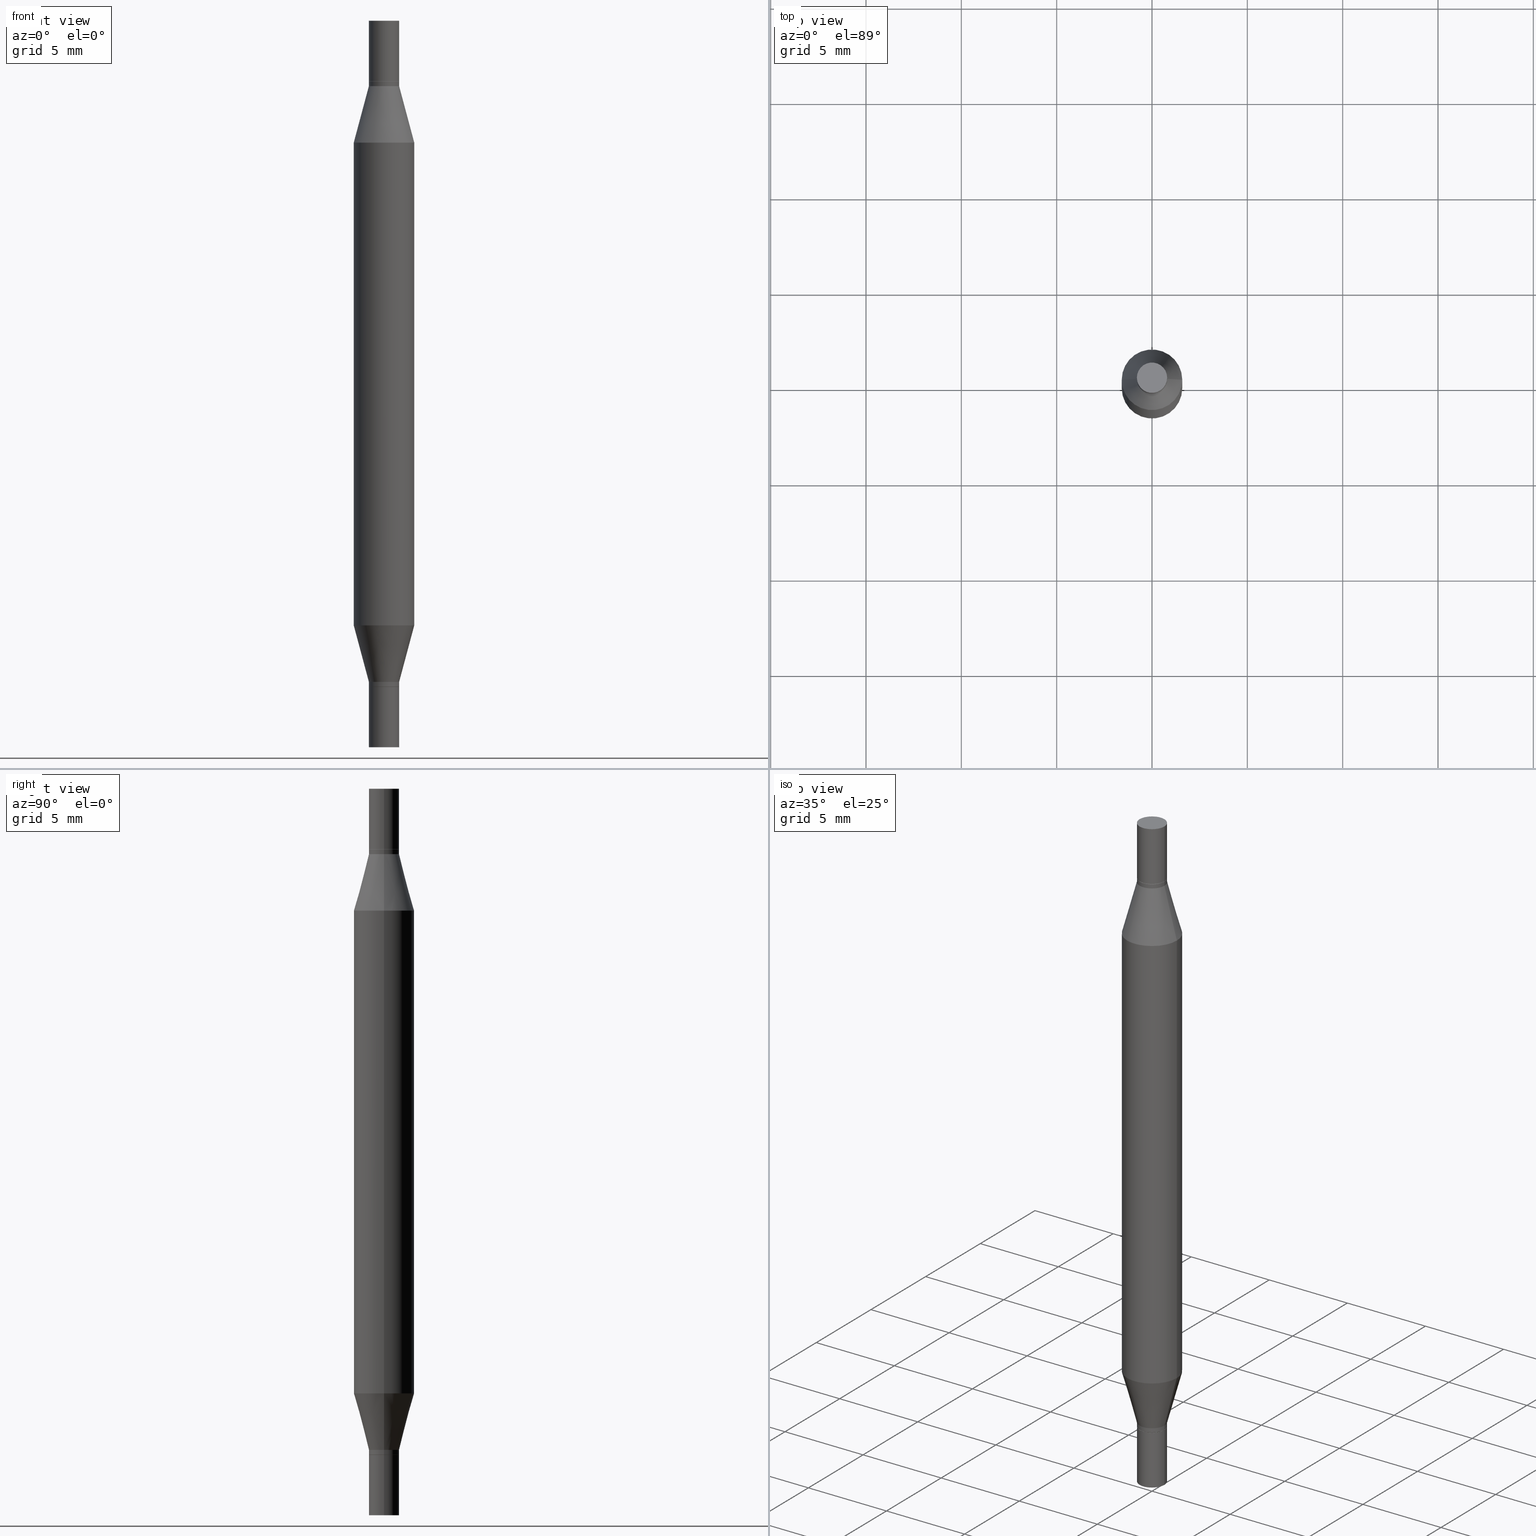
[diagram: canonical four-view strip — front | top / right | iso, engineering-drawing reading convention]
A machine part, canonical four-view strip (front | top / right | iso — engineering-drawing reading convention). The complete STEP part file that produces these views, byte-faithful:
ISO-10303-21;
HEADER;
FILE_DESCRIPTION (( 'STEP AP203' ),
    '1' );
FILE_NAME ('31318.STEP',
    '2024-03-04T15:58:52',
    ( '' ),
    ( '' ),
    'SwSTEP 2.0',
    'SolidWorks 2023',
    '' );
FILE_SCHEMA (( 'CONFIG_CONTROL_DESIGN' ));
ENDSEC;

DATA;
#1 = EDGE_LOOP ( 'NONE', ( #788, #332, #75, #238 ) ) ;
#2 = CARTESIAN_POINT ( 'NONE',  ( 3.052858238161216211E-29, -4.358672472825851059E-15, -1.248373412263471316 ) ) ;
#3 = ORIENTED_EDGE ( 'NONE', *, *, #58, .T. ) ;
#4 = VECTOR ( 'NONE', #384, 39.37007874015748143 ) ;
#5 = DIRECTION ( 'NONE',  ( 0.7071067811865656694, -7.406779323393341342E-15, -0.7071067811865294761 ) ) ;
#6 = DIRECTION ( 'NONE',  ( -0.000000000000000000, -3.491643216902134830E-15, -1.000000000000000000 ) ) ;
#7 = PERSON_AND_ORGANIZATION ( #946, #726 ) ;
#8 = EDGE_CURVE ( 'NONE', #643, #160, #629, .T. ) ;
#9 = DIRECTION ( 'NONE',  ( 0.2588190451025211281, 1.565188264969622954E-15, 0.9659258262890679791 ) ) ;
#10 = CLOSED_SHELL ( 'NONE', ( #928, #686, #753, #255 ) ) ;
#11 = ORIENTED_EDGE ( 'NONE', *, *, #324, .T. ) ;
#12 = CIRCLE ( 'NONE', #278, 0.06250000000000000000 ) ;
#13 = SHAPE_DEFINITION_REPRESENTATION ( #792, #632 ) ;
#14 = VERTEX_POINT ( 'NONE', #229 ) ;
#15 = DIRECTION ( 'NONE',  ( 1.000000000000000000, -6.982962677686276966E-15, 0.000000000000000000 ) ) ;
#16 = DIRECTION ( 'NONE',  ( 1.000000000000000000, -6.982962677686265922E-15, 4.876176775795935793E-29 ) ) ;
#17 = ORIENTED_EDGE ( 'NONE', *, *, #859, .T. ) ;
#18 = ORIENTED_EDGE ( 'NONE', *, *, #8, .T. ) ;
#19 = CARTESIAN_POINT ( 'NONE',  ( 0.03124999999999964612, -5.455682409030896107E-15, -1.500000000000000222 ) ) ;
#20 = AXIS2_PLACEMENT_3D ( 'NONE', #709, #879, #571 ) ;
#21 = EDGE_CURVE ( 'NONE', #403, #696, #645, .T. ) ;
#22 = APPROVAL_ROLE ( '' ) ;
#23 = EDGE_LOOP ( 'NONE', ( #513, #299, #579, #932 ) ) ;
#24 = DIRECTION ( 'NONE',  ( 1.000000000000000000, -6.982962677686262766E-15, 0.000000000000000000 ) ) ;
#25 = AXIS2_PLACEMENT_3D ( 'NONE', #486, #685, #234 ) ;
#26 = AXIS2_PLACEMENT_3D ( 'NONE', #52, #116, #784 ) ;
#27 = EDGE_CURVE ( 'NONE', #750, #257, #95, .T. ) ;
#28 = ORIENTED_EDGE ( 'NONE', *, *, #613, .T. ) ;
#29 = ORIENTED_EDGE ( 'NONE', *, *, #8, .F. ) ;
#30 = DIRECTION ( 'NONE',  ( 1.000000000000000000, -6.982962677686278543E-15, 0.000000000000000000 ) ) ;
#31 = VECTOR ( 'NONE', #138, 39.37007874015748143 ) ;
#32 = ORIENTED_EDGE ( 'NONE', *, *, #21, .F. ) ;
#33 = VERTEX_POINT ( 'NONE', #153 ) ;
#34 = ORIENTED_EDGE ( 'NONE', *, *, #460, .T. ) ;
#35 = CARTESIAN_POINT ( 'NONE',  ( 3.361296874101471140E-29, -4.379787223291373158E-16, -0.1254999999999998062 ) ) ;
#36 = DIRECTION ( 'NONE',  ( -2.445468806185136597E-29, -3.491805094961124077E-15, -1.000000000000000000 ) ) ;
#37 = ORIENTED_EDGE ( 'NONE', *, *, #584, .T. ) ;
#38 = DIRECTION ( 'NONE',  ( -1.000000000000000000, 6.982962677686265922E-15, -2.260776888683160832E-33 ) ) ;
#39 = EDGE_LOOP ( 'NONE', ( #562, #302, #940, #769 ) ) ;
#40 = DIRECTION ( 'NONE',  ( 1.000000000000000000, -6.982962677686265133E-15, 0.000000000000000000 ) ) ;
#41 = EDGE_CURVE ( 'NONE', #100, #257, #449, .T. ) ;
#42 = DIRECTION ( 'NONE',  ( -2.445468806185136877E-29, -3.491805094961123683E-15, -1.000000000000000000 ) ) ;
#43 = CLOSED_SHELL ( 'NONE', ( #535, #491, #827, #94, #567, #609, #747, #346, #820, #977 ) ) ;
#44 = CALENDAR_DATE ( 2024, 4, 3 ) ;
#45 = AXIS2_PLACEMENT_3D ( 'NONE', #807, #957, #898 ) ;
#46 = ORIENTED_EDGE ( 'NONE', *, *, #450, .F. ) ;
#47 = CARTESIAN_POINT ( 'NONE',  ( -0.03124999999999964265, -2.401742340998448159E-16, -0.1350000000000003419 ) ) ;
#48 = DIRECTION ( 'NONE',  ( 1.000000000000000000, -6.982962677686265133E-15, 0.000000000000000000 ) ) ;
#49 = ORIENTED_EDGE ( 'NONE', *, *, #945, .F. ) ;
#50 = DIRECTION ( 'NONE',  ( 1.000000000000000000, -6.982962677686265133E-15, 0.000000000000000000 ) ) ;
#51 = DIRECTION ( 'NONE',  ( -2.445468806185136877E-29, 3.491481338843145188E-15, 1.000000000000000000 ) ) ;
#52 = CARTESIAN_POINT ( 'NONE',  ( 3.668203209277704895E-29, -5.237222008264718177E-15, -1.500000000000000222 ) ) ;
#53 = EDGE_CURVE ( 'NONE', #830, #318, #146, .T. ) ;
#54 = DIRECTION ( 'NONE',  ( 1.000000000000000000, -6.982962677686266711E-15, 0.000000000000000000 ) ) ;
#55 = CARTESIAN_POINT ( 'NONE',  ( 3.362519608504562260E-29, -4.362328197816565895E-16, -0.1250000000000001665 ) ) ;
#56 = EDGE_CURVE ( 'NONE', #637, #100, #529, .T. ) ;
#57 = LINE ( 'NONE', #354, #909 ) ;
#58 = EDGE_CURVE ( 'NONE', #321, #417, #708, .T. ) ;
#59 = CARTESIAN_POINT ( 'NONE',  ( -0.03074999999999999956, -2.252725063501819848E-16, -0.1250000000000001665 ) ) ;
#60 = AXIS2_PLACEMENT_3D ( 'NONE', #808, #131, #432 ) ;
#61 = CARTESIAN_POINT ( 'NONE',  ( -0.03125000000000000000, 2.220446049250313081E-16, -1.537167215704658057E-30 ) ) ;
#62 = CARTESIAN_POINT ( 'NONE',  ( 0.03074999999999999956, -6.509589221205092198E-16, -0.1250000000000001665 ) ) ;
#63 = CYLINDRICAL_SURFACE ( 'NONE', #112, 0.03124999999999964612 ) ;
#64 = DIRECTION ( 'NONE',  ( 1.000000000000000000, -6.982962677686262766E-15, 0.000000000000000000 ) ) ;
#65 = AXIS2_PLACEMENT_3D ( 'NONE', #740, #68, #366 ) ;
#66 = DIRECTION ( 'NONE',  ( 0.7071067811865656694, -7.406779323393341342E-15, -0.7071067811865294761 ) ) ;
#67 = CYLINDRICAL_SURFACE ( 'NONE', #758, 0.03124999999999964612 ) ;
#68 = DIRECTION ( 'NONE',  ( -2.445468806185136597E-29, -3.491805094961124077E-15, -1.000000000000000000 ) ) ;
#69 = DIRECTION ( 'NONE',  ( -0.2588190451025211281, 5.211531920934547886E-15, 0.9659258262890679791 ) ) ;
#70 = EDGE_CURVE ( 'NONE', #257, #100, #103, .T. ) ;
#71 = EDGE_CURVE ( 'NONE', #626, #244, #117, .T. ) ;
#72 = CYLINDRICAL_SURFACE ( 'NONE', #65, 0.06250000000000000000 ) ;
#73 = CLOSED_SHELL ( 'NONE', ( #775, #221, #289, #698 ) ) ;
#74 = AXIS2_PLACEMENT_3D ( 'NONE', #124, #660, #38 ) ;
#75 = ORIENTED_EDGE ( 'NONE', *, *, #734, .F. ) ;
#76 = CARTESIAN_POINT ( 'NONE',  ( 0.000000000000000000, -5.237464825353202639E-15, -1.500000000000000222 ) ) ;
#77 = CARTESIAN_POINT ( 'NONE',  ( 3.362519608504562260E-29, -4.800786840909324930E-15, -1.375000000000000000 ) ) ;
#78 = AXIS2_PLACEMENT_3D ( 'NONE', #564, #801, #197 ) ;
#79 = ORIENTED_EDGE ( 'NONE', *, *, #974, .F. ) ;
#80 = ADVANCED_FACE ( 'NONE', ( #85 ), #159, .F. ) ;
#81 = ORIENTED_EDGE ( 'NONE', *, *, #905, .T. ) ;
#82 = AXIS2_PLACEMENT_3D ( 'NONE', #545, #539, #24 ) ;
#83 = FACE_OUTER_BOUND ( 'NONE', #351, .T. ) ;
#84 = ADVANCED_FACE ( 'NONE', ( #163 ), #264, .F. ) ;
#85 = FACE_OUTER_BOUND ( 'NONE', #543, .T. ) ;
#86 = DATE_AND_TIME ( #834, #851 ) ;
#87 = EDGE_LOOP ( 'NONE', ( #692, #231 ) ) ;
#88 = CARTESIAN_POINT ( 'NONE',  ( -0.06250000000000000000, -1.319718469204263536E-15, -0.7500000000000001110 ) ) ;
#89 = VERTEX_POINT ( 'NONE', #573 ) ;
#90 = APPROVAL_STATUS ( 'not_yet_approved' ) ;
#91 = ORIENTED_EDGE ( 'NONE', *, *, #41, .F. ) ;
#92 = ORIENTED_EDGE ( 'NONE', *, *, #441, .T. ) ;
#93 = LINE ( 'NONE', #693, #856 ) ;
#94 = ADVANCED_FACE ( 'NONE', ( #728 ), #132, .T. ) ;
#95 = LINE ( 'NONE', #396, #563 ) ;
#96 = PERSON_AND_ORGANIZATION ( #946, #726 ) ;
#97 = CYLINDRICAL_SURFACE ( 'NONE', #128, 0.06250000000000000000 ) ;
#98 = CIRCLE ( 'NONE', #786, 0.03125000000000000000 ) ;
#99 = EDGE_CURVE ( 'NONE', #830, #345, #344, .T. ) ;
#100 = VERTEX_POINT ( 'NONE', #951 ) ;
#101 = ORIENTED_EDGE ( 'NONE', *, *, #56, .F. ) ;
#102 = LINE ( 'NONE', #697, #155 ) ;
#103 = CIRCLE ( 'NONE', #970, 0.06250000000000000000 ) ;
#104 = EDGE_LOOP ( 'NONE', ( #534, #600, #835, #760 ) ) ;
#105 = ORIENTED_EDGE ( 'NONE', *, *, #195, .F. ) ;
#106 = DIRECTION ( 'NONE',  ( 1.000000000000000000, -6.982962677686265133E-15, 0.000000000000000000 ) ) ;
#107 = CIRCLE ( 'NONE', #328, 0.03124999999999964265 ) ;
#108 = EDGE_CURVE ( 'NONE', #703, #800, #748, .T. ) ;
#109 = ORIENTED_EDGE ( 'NONE', *, *, #764, .F. ) ;
#110 = DIRECTION ( 'NONE',  ( 1.000000000000000000, -6.982962677686266711E-15, 0.000000000000000000 ) ) ;
#111 = PLANE ( 'NONE',  #733 ) ;
#112 = AXIS2_PLACEMENT_3D ( 'NONE', #978, #604, #528 ) ;
#113 = DATE_TIME_ROLE ( 'classification_date' ) ;
#114 = ORIENTED_EDGE ( 'NONE', *, *, #441, .F. ) ;
#115 = DIRECTION ( 'NONE',  ( -2.445468806185136597E-29, -3.491805094961124077E-15, -1.000000000000000000 ) ) ;
#116 = DIRECTION ( 'NONE',  ( -2.445468806185136597E-29, 3.491481338843145583E-15, 1.000000000000000000 ) ) ;
#117 = CIRCLE ( 'NONE', #467, 0.03125000000000000000 ) ;
#118 = CIRCLE ( 'NONE', #248, 0.03074999999999999956 ) ;
#119 = ORIENTED_EDGE ( 'NONE', *, *, #872, .T. ) ;
#120 = CYLINDRICAL_SURFACE ( 'NONE', #791, 0.03125000000000000000 ) ;
#121 = CARTESIAN_POINT ( 'NONE',  ( 3.668203209277704895E-29, 2.428170884841457504E-19, 0.000000000000000000 ) ) ;
#122 = ADVANCED_FACE ( 'NONE', ( #352 ), #690, .T. ) ;
#123 = LOCAL_TIME ( 10, 58, 52.00000000000000000, #461 ) ;
#124 = CARTESIAN_POINT ( 'NONE',  ( 2.182175836777294352E-16, 0.03124999999999955938, -0.1250000000000001665 ) ) ;
#125 = FACE_OUTER_BOUND ( 'NONE', #383, .T. ) ;
#126 = CARTESIAN_POINT ( 'NONE',  ( 0.03074999999999999956, -5.015512943248178546E-15, -1.375000000000000000 ) ) ;
#127 = ADVANCED_FACE ( 'NONE', ( #804 ), #412, .T. ) ;
#128 = AXIS2_PLACEMENT_3D ( 'NONE', #473, #714, #418 ) ;
#129 = DIRECTION ( 'NONE',  ( -2.445468806185136877E-29, 3.491481338843145188E-15, 1.000000000000000000 ) ) ;
#130 = LINE ( 'NONE', #62, #308 ) ;
#131 = DIRECTION ( 'NONE',  ( 2.445468806185136597E-29, 3.491805094961124077E-15, 1.000000000000000000 ) ) ;
#132 = CONICAL_SURFACE ( 'NONE', #927, 0.03074999999999999956, 0.7853981633974739252 ) ;
#133 = DIRECTION ( 'NONE',  ( 1.000000000000000000, -6.982962677686265922E-15, 4.876176775795936353E-29 ) ) ;
#134 = DIRECTION ( 'NONE',  ( -2.445468806185136597E-29, -3.491805094961124077E-15, -1.000000000000000000 ) ) ;
#135 = LINE ( 'NONE', #227, #256 ) ;
#136 = EDGE_CURVE ( 'NONE', #147, #549, #130, .T. ) ;
#137 = AXIS2_PLACEMENT_3D ( 'NONE', #937, #338, #427 ) ;
#138 = DIRECTION ( 'NONE',  ( -2.445468806185136877E-29, -3.491805094961123683E-15, -1.000000000000000000 ) ) ;
#139 = CIRCLE ( 'NONE', #455, 0.03124999999999964959 ) ;
#140 = CARTESIAN_POINT ( 'NONE',  ( 3.338064920442711275E-29, -4.711508707312691437E-16, -0.1350000000000003419 ) ) ;
#141 = DIRECTION ( 'NONE',  ( -2.445468806185136597E-29, 3.491481338843145583E-15, 1.000000000000000000 ) ) ;
#142 = CC_DESIGN_DATE_AND_TIME_ASSIGNMENT ( #759, #865, ( #799 ) ) ;
#143 = AXIS2_PLACEMENT_3D ( 'NONE', #724, #783, #110 ) ;
#144 = LINE ( 'NONE', #881, #31 ) ;
#145 = CARTESIAN_POINT ( 'NONE',  ( 3.361296874101471140E-29, -4.799041100239905004E-15, -1.374500000000000277 ) ) ;
#146 = CIRCLE ( 'NONE', #370, 0.03074999999999999956 ) ;
#147 = VERTEX_POINT ( 'NONE', #666 ) ;
#148 = FACE_OUTER_BOUND ( 'NONE', #315, .T. ) ;
#149 = EDGE_CURVE ( 'NONE', #434, #800, #446, .T. ) ;
#150 = DIRECTION ( 'NONE',  ( 0.000000000000000000, 0.000000000000000000, 1.000000000000000000 ) ) ;
#151 = ORIENTED_EDGE ( 'NONE', *, *, #672, .F. ) ;
#152 = DIRECTION ( 'NONE',  ( 2.445468806185136597E-29, 3.491805094961124077E-15, 1.000000000000000000 ) ) ;
#153 = CARTESIAN_POINT ( 'NONE',  ( 0.06250000000000000000, -4.795107640181242728E-15, -1.248373412263471316 ) ) ;
#154 = PERSON_AND_ORGANIZATION_ROLE ( 'classification_officer' ) ;
#155 = VECTOR ( 'NONE', #770, 39.37007874015748143 ) ;
#156 = ORIENTED_EDGE ( 'NONE', *, *, #287, .F. ) ;
#157 = CIRCLE ( 'NONE', #833, 0.03124999999999964959 ) ;
#158 = CARTESIAN_POINT ( 'NONE',  ( 3.362519608504562260E-29, -4.362328197816565895E-16, -0.1250000000000001665 ) ) ;
#159 = PLANE ( 'NONE',  #405 ) ;
#160 = VERTEX_POINT ( 'NONE', #745 ) ;
#161 = PLANE ( 'NONE',  #670 ) ;
#162 = CIRCLE ( 'NONE', #718, 0.03125000000000000000 ) ;
#163 = FACE_OUTER_BOUND ( 'NONE', #920, .T. ) ;
#164 = MECHANICAL_CONTEXT ( 'NONE', #170, 'mechanical' ) ;
#165 = ADVANCED_FACE ( 'NONE', ( #285 ), #939, .T. ) ;
#166 = VERTEX_POINT ( 'NONE', #295 ) ;
#167 = VERTEX_POINT ( 'NONE', #431 ) ;
#168 = DIRECTION ( 'NONE',  ( 1.000000000000000000, -6.982962677686265922E-15, 2.260776888683160832E-33 ) ) ;
#169 = AXIS2_PLACEMENT_3D ( 'NONE', #266, #115, #106 ) ;
#170 = APPLICATION_CONTEXT ( 'configuration controlled 3d designs of mechanical parts and assemblies' ) ;
#171 = CIRCLE ( 'NONE', #233, 0.03125000000000000000 ) ;
#172 = CC_DESIGN_PERSON_AND_ORGANIZATION_ASSIGNMENT ( #848, #917, ( #504 ) ) ;
#173 = ORIENTED_EDGE ( 'NONE', *, *, #537, .T. ) ;
#174 = FACE_OUTER_BOUND ( 'NONE', #245, .T. ) ;
#175 = AXIS2_PLACEMENT_3D ( 'NONE', #700, #400, #15 ) ;
#176 = EDGE_LOOP ( 'NONE', ( #706, #570, #612, #408 ) ) ;
#177 = ORIENTED_EDGE ( 'NONE', *, *, #876, .T. ) ;
#178 = DIRECTION ( 'NONE',  ( -2.445468806185136877E-29, -3.491805094961123683E-15, -1.000000000000000000 ) ) ;
#179 = EDGE_CURVE ( 'NONE', #14, #696, #741, .T. ) ;
#180 = AXIS2_PLACEMENT_3D ( 'NONE', #339, #663, #48 ) ;
#181 = ORIENTED_EDGE ( 'NONE', *, *, #99, .F. ) ;
#182 = VERTEX_POINT ( 'NONE', #669 ) ;
#183 = CC_DESIGN_DATE_AND_TIME_ASSIGNMENT ( #386, #113, ( #979 ) ) ;
#184 = FACE_OUTER_BOUND ( 'NONE', #941, .T. ) ;
#185 = CARTESIAN_POINT ( 'NONE',  ( 3.362519608504562260E-29, -4.362328197816565895E-16, -0.1250000000000001665 ) ) ;
#186 = CONICAL_SURFACE ( 'NONE', #217, 0.03074999999999999956, 0.7853981633974739252 ) ;
#187 = COORDINATED_UNIVERSAL_TIME_OFFSET ( 5, 0, .BEHIND. ) ;
#188 = CIRCLE ( 'NONE', #961, 0.03125000000000000000 ) ;
#189 = ORIENTED_EDGE ( 'NONE', *, *, #179, .F. ) ;
#190 = ORIENTED_EDGE ( 'NONE', *, *, #628, .F. ) ;
#191 = CARTESIAN_POINT ( 'NONE',  ( 3.338064920442711275E-29, -4.711508707312691437E-16, -0.1350000000000003419 ) ) ;
#192 = CARTESIAN_POINT ( 'NONE',  ( 3.578599387646213550E-29, -5.365539780773824481E-15, -1.500000000000000222 ) ) ;
#193 = CYLINDRICAL_SURFACE ( 'NONE', #647, 0.03125000000000000000 ) ;
#194 = CARTESIAN_POINT ( 'NONE',  ( 3.362519608504562260E-29, -4.362328197816565895E-16, -0.1250000000000001665 ) ) ;
#195 = EDGE_CURVE ( 'NONE', #244, #626, #293, .T. ) ;
#196 = ORIENTED_EDGE ( 'NONE', *, *, #401, .T. ) ;
#197 = DIRECTION ( 'NONE',  ( 1.000000000000000000, -6.982962677686279332E-15, 0.000000000000000000 ) ) ;
#198 = CARTESIAN_POINT ( 'NONE',  ( 0.000000000000000000, -5.237464825353202639E-15, -1.500000000000000222 ) ) ;
#199 = CONICAL_SURFACE ( 'NONE', #323, 0.03074999999999999956, 0.7853981633974739252 ) ;
#200 = VERTEX_POINT ( 'NONE', #812 ) ;
#201 = CARTESIAN_POINT ( 'NONE',  ( 3.578599387646213550E-29, -1.280749554206214716E-16, 0.000000000000000000 ) ) ;
#202 = ADVANCED_FACE ( 'NONE', ( #219 ), #199, .T. ) ;
#203 = DIRECTION ( 'NONE',  ( 0.7071067811865656694, -2.468850131082446387E-15, 0.7071067811865294761 ) ) ;
#204 = VECTOR ( 'NONE', #521, 39.37007874015748143 ) ;
#205 = CARTESIAN_POINT ( 'NONE',  ( 3.338064920442711275E-29, -4.765872027520892492E-15, -1.364999999999999769 ) ) ;
#206 = DIRECTION ( 'NONE',  ( 1.000000000000000000, -6.982962677686262766E-15, 0.000000000000000000 ) ) ;
#207 = CIRCLE ( 'NONE', #771, 0.03124999999999964265 ) ;
#208 = CARTESIAN_POINT ( 'NONE',  ( 3.052858238161216211E-29, -8.783881839976099214E-16, -0.2516265877365289061 ) ) ;
#209 = LINE ( 'NONE', #451, #555 ) ;
#210 = DIRECTION ( 'NONE',  ( -2.445468806185136877E-29, 3.491481338843145188E-15, 1.000000000000000000 ) ) ;
#211 = ADVANCED_FACE ( 'NONE', ( #736 ), #966, .T. ) ;
#212 = AXIS2_PLACEMENT_3D ( 'NONE', #498, #864, #507 ) ;
#213 = LINE ( 'NONE', #810, #204 ) ;
#214 = EDGE_CURVE ( 'NONE', #925, #14, #531, .T. ) ;
#215 = DIRECTION ( 'NONE',  ( -2.445468806185136597E-29, -3.491805094961124077E-15, -1.000000000000000000 ) ) ;
#216 = LINE ( 'NONE', #743, #624 ) ;
#217 = AXIS2_PLACEMENT_3D ( 'NONE', #874, #493, #574 ) ;
#218 = DIRECTION ( 'NONE',  ( -2.445468806185136597E-29, 3.491481338843145583E-15, 1.000000000000000000 ) ) ;
#219 = FACE_OUTER_BOUND ( 'NONE', #500, .T. ) ;
#220 = DIRECTION ( 'NONE',  ( 1.000000000000000000, -6.982962677686266711E-15, 0.000000000000000000 ) ) ;
#221 = ADVANCED_FACE ( 'NONE', ( #821 ), #662, .F. ) ;
#222 = VERTEX_POINT ( 'NONE', #651 ) ;
#223 = DIRECTION ( 'NONE',  ( 1.000000000000000000, -6.982962677686265922E-15, 4.876176775795936353E-29 ) ) ;
#224 = DIRECTION ( 'NONE',  ( 1.000000000000000000, -6.982962677686265922E-15, 0.000000000000000000 ) ) ;
#225 = CIRCLE ( 'NONE', #776, 0.03124999999999964265 ) ;
#226 = ORIENTED_EDGE ( 'NONE', *, *, #659, .T. ) ;
#227 = CARTESIAN_POINT ( 'NONE',  ( -0.03125000000000000000, -5.023074262922842278E-15, -1.500000000000000222 ) ) ;
#228 = EDGE_CURVE ( 'NONE', #325, #166, #725, .T. ) ;
#229 = CARTESIAN_POINT ( 'NONE',  ( 0.03125000000000000000, -2.179747665892116927E-16, 7.064927777134877600E-35 ) ) ;
#230 = APPROVAL_ROLE ( '' ) ;
#231 = ORIENTED_EDGE ( 'NONE', *, *, #945, .T. ) ;
#232 = CARTESIAN_POINT ( 'NONE',  ( 0.03124999999999964265, -6.893684544089624146E-16, -0.1350000000000003419 ) ) ;
#233 = AXIS2_PLACEMENT_3D ( 'NONE', #290, #819, #358 ) ;
#234 = DIRECTION ( 'NONE',  ( 1.000000000000000000, -6.982962677686266711E-15, 0.000000000000000000 ) ) ;
#235 = CIRCLE ( 'NONE', #540, 0.03124999999999964265 ) ;
#236 = APPROVAL_STATUS ( 'not_yet_approved' ) ;
#237 = ORIENTED_EDGE ( 'NONE', *, *, #448, .F. ) ;
#238 = ORIENTED_EDGE ( 'NONE', *, *, #623, .F. ) ;
#239 = MANIFOLD_SOLID_BREP ( 'Mirror1[1]', #43 ) ;
#240 = LINE ( 'NONE', #931, #636 ) ;
#241 = VERTEX_POINT ( 'NONE', #348 ) ;
#242 = EDGE_CURVE ( 'NONE', #100, #33, #657, .T. ) ;
#243 = COORDINATED_UNIVERSAL_TIME_OFFSET ( 5, 0, .BEHIND. ) ;
#244 = VERTEX_POINT ( 'NONE', #576 ) ;
#245 = EDGE_LOOP ( 'NONE', ( #407, #18 ) ) ;
#246 = CARTESIAN_POINT ( 'NONE',  ( 0.03124999999999964265, -6.893684544089624146E-16, -0.1350000000000003419 ) ) ;
#247 = AXIS2_PLACEMENT_3D ( 'NONE', #962, #510, #515 ) ;
#248 = AXIS2_PLACEMENT_3D ( 'NONE', #286, #675, #590 ) ;
#249 = ORIENTED_EDGE ( 'NONE', *, *, #883, .F. ) ;
#250 = DIRECTION ( 'NONE',  ( -2.445468806185136877E-29, -3.491805094961123683E-15, -1.000000000000000000 ) ) ;
#251 = APPROVAL_PERSON_ORGANIZATION ( #96, #778, #230 ) ;
#252 = CC_DESIGN_SECURITY_CLASSIFICATION ( #979, ( #947 ) ) ;
#253 = ORIENTED_EDGE ( 'NONE', *, *, #287, .T. ) ;
#254 = DIRECTION ( 'NONE',  ( -2.438088387897959208E-29, -3.491805094961123683E-15, -1.000000000000000000 ) ) ;
#255 = ADVANCED_FACE ( 'NONE', ( #882 ), #111, .F. ) ;
#256 = VECTOR ( 'NONE', #516, 39.37007874015748143 ) ;
#257 = VERTEX_POINT ( 'NONE', #803 ) ;
#258 = EDGE_LOOP ( 'NONE', ( #464, #546, #918, #313 ) ) ;
#259 = FACE_OUTER_BOUND ( 'NONE', #487, .T. ) ;
#260 = DIRECTION ( 'NONE',  ( 1.000000000000000000, -6.982962677686265922E-15, 4.876176775795935793E-29 ) ) ;
#261 = DIRECTION ( 'NONE',  ( 1.000000000000000000, -6.982962677686270655E-15, 0.000000000000000000 ) ) ;
#262 = CIRCLE ( 'NONE', #829, 0.03124999999999964959 ) ;
#263 = ORIENTED_EDGE ( 'NONE', *, *, #214, .T. ) ;
#264 = PLANE ( 'NONE',  #74 ) ;
#265 = ORIENTED_EDGE ( 'NONE', *, *, #578, .F. ) ;
#266 = CARTESIAN_POINT ( 'NONE',  ( 3.338064920442711275E-29, -4.711508707312691437E-16, -0.1350000000000003419 ) ) ;
#267 = CARTESIAN_POINT ( 'NONE',  ( -0.03124999999999964612, 2.220446049250287936E-16, -1.537167215704640716E-30 ) ) ;
#268 = AXIS2_PLACEMENT_3D ( 'NONE', #416, #150, #568 ) ;
#269 = ADVANCED_FACE ( 'NONE', ( #954 ), #193, .T. ) ;
#270 = VERTEX_POINT ( 'NONE', #938 ) ;
#271 = CARTESIAN_POINT ( 'NONE',  ( -0.06250000000000000000, -4.496070591368893960E-16, -0.2516265877365289061 ) ) ;
#272 = DIRECTION ( 'NONE',  ( 1.000000000000000000, -6.982962677686265133E-15, 0.000000000000000000 ) ) ;
#273 = EDGE_CURVE ( 'NONE', #33, #89, #12, .T. ) ;
#274 = VERTEX_POINT ( 'NONE', #566 ) ;
#275 = PLANE ( 'NONE',  #633 ) ;
#276 = CARTESIAN_POINT ( 'NONE',  ( 3.361296874101471140E-29, -4.379787223291373158E-16, -0.1254999999999998062 ) ) ;
#277 = AXIS2_PLACEMENT_3D ( 'NONE', #380, #6, #904 ) ;
#278 = AXIS2_PLACEMENT_3D ( 'NONE', #959, #335, #261 ) ;
#279 = CARTESIAN_POINT ( 'NONE',  ( 3.338064920442711275E-29, -4.765872027520892492E-15, -1.364999999999999769 ) ) ;
#280 = DIRECTION ( 'NONE',  ( 1.000000000000000000, -6.982962677686262766E-15, 0.000000000000000000 ) ) ;
#281 = CARTESIAN_POINT ( 'NONE',  ( -0.03124999999999964265, -2.567603083009112476E-16, -0.1350000000000003419 ) ) ;
#282 = CARTESIAN_POINT ( 'NONE',  ( -0.03074999999999999956, -4.579645722488984897E-15, -1.375000000000000000 ) ) ;
#283 = ORIENTED_EDGE ( 'NONE', *, *, #406, .T. ) ;
#284 = DIRECTION ( 'NONE',  ( 1.000000000000000000, -6.982962677686280121E-15, 0.000000000000000000 ) ) ;
#285 = FACE_OUTER_BOUND ( 'NONE', #556, .T. ) ;
#286 = CARTESIAN_POINT ( 'NONE',  ( 3.362519608504562260E-29, -4.800786840909324930E-15, -1.375000000000000000 ) ) ;
#287 = EDGE_CURVE ( 'NONE', #866, #270, #421, .T. ) ;
#288 = AXIS2_PLACEMENT_3D ( 'NONE', #77, #854, #627 ) ;
#289 = ADVANCED_FACE ( 'NONE', ( #415 ), #494, .T. ) ;
#290 = CARTESIAN_POINT ( 'NONE',  ( 3.668203209277704895E-29, -5.237222008264718177E-15, -1.500000000000000222 ) ) ;
#291 = CARTESIAN_POINT ( 'NONE',  ( 0.000000000000000000, -5.237464825353202639E-15, -1.500000000000000222 ) ) ;
#292 = CARTESIAN_POINT ( 'NONE',  ( 0.000000000000000000, -5.237464825353202639E-15, -1.500000000000000222 ) ) ;
#293 = CIRCLE ( 'NONE', #247, 0.03125000000000000000 ) ;
#294 = CIRCLE ( 'NONE', #973, 0.03124999999999964959 ) ;
#295 = CARTESIAN_POINT ( 'NONE',  ( 0.03124999999999964265, -4.984089611198585960E-15, -1.364999999999999769 ) ) ;
#296 = CARTESIAN_POINT ( 'NONE',  ( -0.03124999999999964265, -4.560411958955369806E-15, -1.364999999999999769 ) ) ;
#297 = EDGE_CURVE ( 'NONE', #274, #345, #262, .T. ) ;
#298 = LOCAL_TIME ( 10, 58, 52.00000000000000000, #187 ) ;
#299 = ORIENTED_EDGE ( 'NONE', *, *, #99, .T. ) ;
#300 = DIRECTION ( 'NONE',  ( -2.445468806185136597E-29, 3.491481338843145583E-15, 1.000000000000000000 ) ) ;
#301 = ORIENTED_EDGE ( 'NONE', *, *, #537, .F. ) ;
#302 = ORIENTED_EDGE ( 'NONE', *, *, #787, .F. ) ;
#303 = EDGE_CURVE ( 'NONE', #222, #147, #676, .T. ) ;
#304 = EDGE_LOOP ( 'NONE', ( #181, #452, #34, #936 ) ) ;
#305 = DIRECTION ( 'NONE',  ( 0.2588190451025211281, -5.180148453816004835E-15, -0.9659258262890679791 ) ) ;
#306 = ORIENTED_EDGE ( 'NONE', *, *, #640, .T. ) ;
#307 = PERSON_AND_ORGANIZATION ( #946, #726 ) ;
#308 = VECTOR ( 'NONE', #66, 39.37007874015748143 ) ;
#309 = ORIENTED_EDGE ( 'NONE', *, *, #896, .F. ) ;
#310 = FACE_OUTER_BOUND ( 'NONE', #948, .T. ) ;
#311 = DIRECTION ( 'NONE',  ( -0.7071067811865656694, 7.493145998870420424E-15, 0.7071067811865294761 ) ) ;
#312 = COORDINATED_UNIVERSAL_TIME_OFFSET ( 5, 0, .BEHIND. ) ;
#313 = ORIENTED_EDGE ( 'NONE', *, *, #739, .T. ) ;
#314 = CARTESIAN_POINT ( 'NONE',  ( 2.182175836777294352E-16, 0.03124999999999519829, -1.375000000000000222 ) ) ;
#315 = EDGE_LOOP ( 'NONE', ( #772, #638, #906, #114 ) ) ;
#316 = EDGE_CURVE ( 'NONE', #755, #325, #420, .T. ) ;
#317 = AXIS2_PLACEMENT_3D ( 'NONE', #831, #899, #671 ) ;
#318 = VERTEX_POINT ( 'NONE', #944 ) ;
#319 = ORIENTED_EDGE ( 'NONE', *, *, #503, .T. ) ;
#320 = PLANE ( 'NONE',  #964 ) ;
#321 = VERTEX_POINT ( 'NONE', #282 ) ;
#322 = CARTESIAN_POINT ( 'NONE',  ( 3.362519608504562260E-29, -4.362328197816565895E-16, -0.1250000000000001665 ) ) ;
#323 = AXIS2_PLACEMENT_3D ( 'NONE', #674, #134, #585 ) ;
#324 = EDGE_CURVE ( 'NONE', #434, #560, #225, .T. ) ;
#325 = VERTEX_POINT ( 'NONE', #502 ) ;
#326 = DIRECTION ( 'NONE',  ( -2.438088387897959208E-29, -3.491805094961123683E-15, -1.000000000000000000 ) ) ;
#327 = CONICAL_SURFACE ( 'NONE', #169, 0.03124999999999964265, 0.2617993877991498519 ) ;
#328 = AXIS2_PLACEMENT_3D ( 'NONE', #514, #218, #284 ) ;
#329 = PRODUCT_RELATED_PRODUCT_CATEGORY ( 'detail', '', ( #504 ) ) ;
#330 = ORIENTED_EDGE ( 'NONE', *, *, #56, .T. ) ;
#331 = ORIENTED_EDGE ( 'NONE', *, *, #764, .T. ) ;
#332 = ORIENTED_EDGE ( 'NONE', *, *, #448, .T. ) ;
#333 = CARTESIAN_POINT ( 'NONE',  ( 0.000000000000000000, 0.000000000000000000, 0.000000000000000000 ) ) ;
#334 = AXIS2_PLACEMENT_3D ( 'NONE', #158, #254, #552 ) ;
#335 = DIRECTION ( 'NONE',  ( -2.445468806185136597E-29, 3.491481338843145583E-15, 1.000000000000000000 ) ) ;
#336 = ORIENTED_EDGE ( 'NONE', *, *, #659, .F. ) ;
#337 = ORIENTED_EDGE ( 'NONE', *, *, #401, .F. ) ;
#338 = DIRECTION ( 'NONE',  ( 2.445468806185136597E-29, 3.491805094961124077E-15, 1.000000000000000000 ) ) ;
#339 = CARTESIAN_POINT ( 'NONE',  ( 3.338064920442711275E-29, -4.711508707312691437E-16, -0.1350000000000003419 ) ) ;
#340 = EDGE_LOOP ( 'NONE', ( #249, #91, #605, #762 ) ) ;
#341 = DIRECTION ( 'NONE',  ( -2.445468806185136597E-29, -3.491805094961124077E-15, -1.000000000000000000 ) ) ;
#342 = DIRECTION ( 'NONE',  ( 1.000000000000000000, -6.982962677686266711E-15, 2.260776888683160832E-33 ) ) ;
#343 = CIRCLE ( 'NONE', #519, 0.03124999999999964959 ) ;
#344 = LINE ( 'NONE', #59, #795 ) ;
#345 = VERTEX_POINT ( 'NONE', #875 ) ;
#346 = ADVANCED_FACE ( 'NONE', ( #428 ), #489, .T. ) ;
#347 = CYLINDRICAL_SURFACE ( 'NONE', #620, 0.03125000000000000000 ) ;
#348 = CARTESIAN_POINT ( 'NONE',  ( 0.03125000000000000000, -5.019004424587021553E-15, -1.375000000000000222 ) ) ;
#349 = CARTESIAN_POINT ( 'NONE',  ( 0.000000000000000000, -5.237464825353202639E-15, -1.500000000000000222 ) ) ;
#350 = CIRCLE ( 'NONE', #175, 0.03074999999999999956 ) ;
#351 = EDGE_LOOP ( 'NONE', ( #37, #28 ) ) ;
#352 = FACE_OUTER_BOUND ( 'NONE', #492, .T. ) ;
#353 = LINE ( 'NONE', #484, #517 ) ;
#354 = CARTESIAN_POINT ( 'NONE',  ( -0.03124999999999964612, -5.023074262922844644E-15, -1.500000000000000222 ) ) ;
#355 = AXIS2_PLACEMENT_3D ( 'NONE', #349, #730, #715 ) ;
#356 = DIRECTION ( 'NONE',  ( -2.445468806185136597E-29, 3.491481338843145583E-15, 1.000000000000000000 ) ) ;
#357 = EDGE_CURVE ( 'NONE', #345, #434, #57, .T. ) ;
#358 = DIRECTION ( 'NONE',  ( 1.000000000000000000, -6.982962677686262766E-15, 0.000000000000000000 ) ) ;
#359 = DIRECTION ( 'NONE',  ( -2.445468806185136597E-29, 3.491481338843145583E-15, 1.000000000000000000 ) ) ;
#360 = CC_DESIGN_PERSON_AND_ORGANIZATION_ASSIGNMENT ( #763, #456, ( #947 ) ) ;
#361 = VECTOR ( 'NONE', #430, 39.37007874015748143 ) ;
#362 = CARTESIAN_POINT ( 'NONE',  ( 3.668203209277704895E-29, 2.428170884841457504E-19, 0.000000000000000000 ) ) ;
#363 = DIRECTION ( 'NONE',  ( -2.445468806185136597E-29, -3.491805094961124077E-15, -1.000000000000000000 ) ) ;
#364 = LINE ( 'NONE', #533, #847 ) ;
#365 = CIRCLE ( 'NONE', #559, 0.03124999999999964959 ) ;
#366 = DIRECTION ( 'NONE',  ( 1.000000000000000000, -6.982962677686262766E-15, 0.000000000000000000 ) ) ;
#367 = CARTESIAN_POINT ( 'NONE',  ( 0.03125000000000000000, -5.455682409030898474E-15, -1.500000000000000222 ) ) ;
#368 = DIRECTION ( 'NONE',  ( 1.000000000000000000, -6.982962677686279332E-15, 0.000000000000000000 ) ) ;
#369 = EDGE_CURVE ( 'NONE', #318, #830, #485, .T. ) ;
#370 = AXIS2_PLACEMENT_3D ( 'NONE', #373, #680, #224 ) ;
#371 = DIRECTION ( 'NONE',  ( 2.445468806185136597E-29, 3.491805094961124077E-15, 1.000000000000000000 ) ) ;
#372 = CARTESIAN_POINT ( 'NONE',  ( 0.03124999999999964265, -6.893684544089624146E-16, -0.1350000000000003419 ) ) ;
#373 = CARTESIAN_POINT ( 'NONE',  ( 3.362519608504562260E-29, -4.362328197816565895E-16, -0.1250000000000001665 ) ) ;
#374 = ORIENTED_EDGE ( 'NONE', *, *, #195, .T. ) ;
#375 = APPROVAL_PERSON_ORGANIZATION ( #691, #378, #22 ) ;
#376 = DIRECTION ( 'NONE',  ( 2.445468806185136597E-29, 3.491805094961124077E-15, 1.000000000000000000 ) ) ;
#377 = ORIENTED_EDGE ( 'NONE', *, *, #955, .F. ) ;
#378 = APPROVAL ( #90, 'UNSPECIFIED' ) ;
#379 = CARTESIAN_POINT ( 'NONE',  ( 0.03074999999999999956, -6.509589221205092198E-16, -0.1250000000000001665 ) ) ;
#380 = CARTESIAN_POINT ( 'NONE',  ( 1.834101604638852448E-29, -2.618611004132359088E-15, -0.7500000000000001110 ) ) ;
#381 = AXIS2_PLACEMENT_3D ( 'NONE', #191, #719, #50 ) ;
#382 = APPROVAL_ROLE ( '' ) ;
#383 = EDGE_LOOP ( 'NONE', ( #825, #551, #17, #472 ) ) ;
#384 = DIRECTION ( 'NONE',  ( -2.445468806185136877E-29, -3.491805094961123683E-15, -1.000000000000000000 ) ) ;
#385 = EDGE_LOOP ( 'NONE', ( #702, #930, #319, #711 ) ) ;
#386 = DATE_AND_TIME ( #397, #123 ) ;
#387 = EDGE_CURVE ( 'NONE', #750, #637, #614, .T. ) ;
#388 = AXIS2_PLACEMENT_3D ( 'NONE', #208, #577, #54 ) ;
#389 = ORIENTED_EDGE ( 'NONE', *, *, #214, .F. ) ;
#390 = CARTESIAN_POINT ( 'NONE',  ( -0.03125000000000000000, -3.604438916225850059E-18, -0.1249999999999999029 ) ) ;
#391 = CARTESIAN_POINT ( 'NONE',  ( 3.362519608504562260E-29, -4.800786840909324930E-15, -1.375000000000000000 ) ) ;
#392 = CALENDAR_DATE ( 2024, 4, 3 ) ;
#393 = ORIENTED_EDGE ( 'NONE', *, *, #450, .T. ) ;
#394 = CARTESIAN_POINT ( 'NONE',  ( 0.06250000000000000000, -1.314823351353001887E-15, -0.2516265877365289061 ) ) ;
#395 = APPROVAL_PERSON_ORGANIZATION ( #7, #642, #382 ) ;
#396 = CARTESIAN_POINT ( 'NONE',  ( -0.03124999999999964265, -2.567603083009112476E-16, -0.1350000000000003419 ) ) ;
#397 = CALENDAR_DATE ( 2024, 4, 3 ) ;
#398 = AXIS2_PLACEMENT_3D ( 'NONE', #756, #766, #168 ) ;
#399 = EDGE_LOOP ( 'NONE', ( #156, #603 ) ) ;
#400 = DIRECTION ( 'NONE',  ( -2.445468806185136597E-29, 3.491481338843145583E-15, 1.000000000000000000 ) ) ;
#401 = EDGE_CURVE ( 'NONE', #417, #413, #648, .T. ) ;
#402 = EDGE_LOOP ( 'NONE', ( #782, #196, #482, #649 ) ) ;
#403 = VERTEX_POINT ( 'NONE', #870 ) ;
#404 = LINE ( 'NONE', #19, #4 ) ;
#405 = AXIS2_PLACEMENT_3D ( 'NONE', #391, #694, #16 ) ;
#406 = EDGE_CURVE ( 'NONE', #14, #925, #162, .T. ) ;
#407 = ORIENTED_EDGE ( 'NONE', *, *, #734, .T. ) ;
#408 = ORIENTED_EDGE ( 'NONE', *, *, #787, .T. ) ;
#409 = CARTESIAN_POINT ( 'NONE',  ( -0.03074999999999999956, -2.244303331244799627E-16, -0.1250000000000001665 ) ) ;
#410 = CONICAL_SURFACE ( 'NONE', #439, 0.03124999999999964265, 0.2617993877991498519 ) ;
#411 = EDGE_LOOP ( 'NONE', ( #253, #177, #630, #895 ) ) ;
#412 = CYLINDRICAL_SURFACE ( 'NONE', #45, 0.06250000000000000000 ) ;
#413 = VERTEX_POINT ( 'NONE', #296 ) ;
#414 = DIRECTION ( 'NONE',  ( 2.445468806185136597E-29, 3.491805094961124077E-15, 1.000000000000000000 ) ) ;
#415 = FACE_OUTER_BOUND ( 'NONE', #530, .T. ) ;
#416 = CARTESIAN_POINT ( 'NONE',  ( 0.000000000000000000, 0.000000000000000000, 0.000000000000000000 ) ) ;
#417 = VERTEX_POINT ( 'NONE', #972 ) ;
#418 = DIRECTION ( 'NONE',  ( 1.000000000000000000, -6.982962677686262766E-15, 0.000000000000000000 ) ) ;
#419 = EDGE_CURVE ( 'NONE', #560, #703, #813, .T. ) ;
#420 = LINE ( 'NONE', #126, #814 ) ;
#421 = CIRCLE ( 'NONE', #26, 0.03125000000000000000 ) ;
#422 = VECTOR ( 'NONE', #5, 39.37007874015748143 ) ;
#423 = ORIENTED_EDGE ( 'NONE', *, *, #71, .T. ) ;
#424 = FACE_OUTER_BOUND ( 'NONE', #857, .T. ) ;
#425 = DIRECTION ( 'NONE',  ( 2.445468806185136597E-29, 3.491805094961124077E-15, 1.000000000000000000 ) ) ;
#426 = CC_DESIGN_APPROVAL ( #778, ( #947 ) ) ;
#427 = DIRECTION ( 'NONE',  ( 1.000000000000000000, -6.982962677686266711E-15, 2.260776888683160832E-33 ) ) ;
#428 = FACE_OUTER_BOUND ( 'NONE', #176, .T. ) ;
#429 = EDGE_CURVE ( 'NONE', #147, #222, #720, .T. ) ;
#430 = DIRECTION ( 'NONE',  ( -2.445468806185136877E-29, -3.491805094961123683E-15, -1.000000000000000000 ) ) ;
#431 = CARTESIAN_POINT ( 'NONE',  ( -0.03125000000000000000, -3.604438916225850059E-18, 7.776428700517213427E-31 ) ) ;
#432 = DIRECTION ( 'NONE',  ( 1.000000000000000000, -6.982962677686265922E-15, 0.000000000000000000 ) ) ;
#433 = AXIS2_PLACEMENT_3D ( 'NONE', #185, #425, #581 ) ;
#434 = VERTEX_POINT ( 'NONE', #611 ) ;
#435 = CARTESIAN_POINT ( 'NONE',  ( 3.361296874101471140E-29, -4.379787223291373158E-16, -0.1254999999999998062 ) ) ;
#436 = DIRECTION ( 'NONE',  ( -0.2588190451025211281, -1.597197180879715312E-15, -0.9659258262890679791 ) ) ;
#437 = LINE ( 'NONE', #908, #508 ) ;
#438 = EDGE_LOOP ( 'NONE', ( #337, #92, #597, #976 ) ) ;
#439 = AXIS2_PLACEMENT_3D ( 'NONE', #598, #890, #440 ) ;
#440 = DIRECTION ( 'NONE',  ( 1.000000000000000000, -6.982962677686280121E-15, 0.000000000000000000 ) ) ;
#441 = EDGE_CURVE ( 'NONE', #417, #325, #294, .T. ) ;
#442 = DIRECTION ( 'NONE',  ( 2.445468806185136597E-29, 3.491805094961124077E-15, 1.000000000000000000 ) ) ;
#443 = FACE_OUTER_BOUND ( 'NONE', #1, .T. ) ;
#444 = AXIS2_PLACEMENT_3D ( 'NONE', #76, #684, #368 ) ;
#445 =( LENGTH_UNIT ( ) NAMED_UNIT ( * ) SI_UNIT ( $, .METRE. ) );
#446 = LINE ( 'NONE', #281, #512 ) ;
#447 = DIRECTION ( 'NONE',  ( 2.445468806185136597E-29, 3.491805094961124077E-15, 1.000000000000000000 ) ) ;
#448 = EDGE_CURVE ( 'NONE', #800, #643, #364, .T. ) ;
#449 = CIRCLE ( 'NONE', #25, 0.06250000000000000000 ) ;
#450 = EDGE_CURVE ( 'NONE', #755, #321, #118, .T. ) ;
#451 = CARTESIAN_POINT ( 'NONE',  ( 0.03125000000000000000, -5.455682409030898474E-15, -1.500000000000000222 ) ) ;
#452 = ORIENTED_EDGE ( 'NONE', *, *, #369, .F. ) ;
#453 = DIRECTION ( 'NONE',  ( 1.000000000000000000, -6.982962677686265922E-15, 0.000000000000000000 ) ) ;
#454 = CARTESIAN_POINT ( 'NONE',  ( 3.362519608504562821E-29, -4.362328197816556034E-16, -0.1249999999999999029 ) ) ;
#455 = AXIS2_PLACEMENT_3D ( 'NONE', #435, #376, #735 ) ;
#456 = PERSON_AND_ORGANIZATION_ROLE ( 'design_supplier' ) ;
#457 = ORIENTED_EDGE ( 'NONE', *, *, #613, .F. ) ;
#458 = CARTESIAN_POINT ( 'NONE',  ( -0.03124999999999964959, -2.235881598987778912E-16, -0.1254999999999998062 ) ) ;
#459 = CARTESIAN_POINT ( 'NONE',  ( 3.052858238161216211E-29, -8.783881839976099214E-16, -0.2516265877365289061 ) ) ;
#460 = EDGE_CURVE ( 'NONE', #318, #274, #746, .T. ) ;
#461 = COORDINATED_UNIVERSAL_TIME_OFFSET ( 5, 0, .BEHIND. ) ;
#462 = ORIENTED_EDGE ( 'NONE', *, *, #811, .T. ) ;
#463 = CARTESIAN_POINT ( 'NONE',  ( 0.000000000000000000, 0.000000000000000000, -0.7500000000000001110 ) ) ;
#464 = ORIENTED_EDGE ( 'NONE', *, *, #884, .F. ) ;
#465 = APPROVAL_STATUS ( 'not_yet_approved' ) ;
#466 = ORIENTED_EDGE ( 'NONE', *, *, #71, .F. ) ;
#467 = AXIS2_PLACEMENT_3D ( 'NONE', #454, #752, #757 ) ;
#468 = EDGE_LOOP ( 'NONE', ( #49, #842, #423, #877 ) ) ;
#469 = FACE_OUTER_BOUND ( 'NONE', #861, .T. ) ;
#470 = ORIENTED_EDGE ( 'NONE', *, *, #595, .F. ) ;
#471 = ORIENTED_EDGE ( 'NONE', *, *, #900, .T. ) ;
#472 = ORIENTED_EDGE ( 'NONE', *, *, #136, .F. ) ;
#473 = CARTESIAN_POINT ( 'NONE',  ( 0.000000000000000000, -5.237464825353202639E-15, -1.500000000000000222 ) ) ;
#474 = CIRCLE ( 'NONE', #915, 0.03124999999999964265 ) ;
#475 = EDGE_CURVE ( 'NONE', #866, #241, #437, .T. ) ;
#476 = AXIS2_PLACEMENT_3D ( 'NONE', #523, #359, #903 ) ;
#477 = ORIENTED_EDGE ( 'NONE', *, *, #387, .T. ) ;
#478 = AXIS2_PLACEMENT_3D ( 'NONE', #55, #580, #796 ) ;
#479 = DIRECTION ( 'NONE',  ( 1.000000000000000000, -6.982962677686265922E-15, 2.260776888683160832E-33 ) ) ;
#480 = ADVANCED_FACE ( 'NONE', ( #888 ), #511, .T. ) ;
#481 = EDGE_CURVE ( 'NONE', #167, #626, #135, .T. ) ;
#482 = ORIENTED_EDGE ( 'NONE', *, *, #872, .F. ) ;
#483 = ORIENTED_EDGE ( 'NONE', *, *, #884, .T. ) ;
#484 = CARTESIAN_POINT ( 'NONE',  ( -0.03124999999999964612, -5.023074262922844644E-15, -1.500000000000000222 ) ) ;
#485 = CIRCLE ( 'NONE', #60, 0.03074999999999999956 ) ;
#486 = CARTESIAN_POINT ( 'NONE',  ( 3.052858238161216211E-29, -8.783881839976099214E-16, -0.2516265877365289061 ) ) ;
#487 = EDGE_LOOP ( 'NONE', ( #309, #853, #11, #377 ) ) ;
#488 = DIRECTION ( 'NONE',  ( 1.000000000000000000, -6.982962677686267499E-15, 0.000000000000000000 ) ) ;
#489 = CYLINDRICAL_SURFACE ( 'NONE', #355, 0.03124999999999964612 ) ;
#490 = APPROVAL_DATE_TIME ( #86, #778 ) ;
#491 = ADVANCED_FACE ( 'NONE', ( #679 ), #902, .T. ) ;
#492 = EDGE_LOOP ( 'NONE', ( #119, #173, #907, #336 ) ) ;
#493 = DIRECTION ( 'NONE',  ( -2.445468806185136597E-29, -3.491805094961124077E-15, -1.000000000000000000 ) ) ;
#494 = CYLINDRICAL_SURFACE ( 'NONE', #212, 0.03125000000000000000 ) ;
#495 = DIRECTION ( 'NONE',  ( -0.7071067811865656694, 2.382025595312421833E-15, -0.7071067811865294761 ) ) ;
#496 = ORIENTED_EDGE ( 'NONE', *, *, #968, .T. ) ;
#497 = FACE_OUTER_BOUND ( 'NONE', #304, .T. ) ;
#498 = CARTESIAN_POINT ( 'NONE',  ( 0.000000000000000000, 0.000000000000000000, 0.000000000000000000 ) ) ;
#499 = AXIS2_PLACEMENT_3D ( 'NONE', #279, #356, #505 ) ;
#500 = EDGE_LOOP ( 'NONE', ( #470, #607, #538, #331 ) ) ;
#501 = FACE_OUTER_BOUND ( 'NONE', #438, .T. ) ;
#502 = CARTESIAN_POINT ( 'NONE',  ( 0.03124999999999964959, -5.017258683917598472E-15, -1.374500000000000277 ) ) ;
#503 = EDGE_CURVE ( 'NONE', #800, #703, #656, .T. ) ;
#504 = PRODUCT ( '31318', '31318', '', ( #164 ) ) ;
#505 = DIRECTION ( 'NONE',  ( 1.000000000000000000, -6.982962677686280121E-15, 0.000000000000000000 ) ) ;
#506 = LINE ( 'NONE', #589, #361 ) ;
#507 = DIRECTION ( 'NONE',  ( 1.000000000000000000, -6.982962677686266711E-15, 4.876176775795935793E-29 ) ) ;
#508 = VECTOR ( 'NONE', #210, 39.37007874015748143 ) ;
#509 = CYLINDRICAL_SURFACE ( 'NONE', #754, 0.03125000000000000000 ) ;
#510 = DIRECTION ( 'NONE',  ( 2.445468806185136597E-29, 3.491805094961124077E-15, 1.000000000000000000 ) ) ;
#511 = CYLINDRICAL_SURFACE ( 'NONE', #444, 0.03124999999999964612 ) ;
#512 = VECTOR ( 'NONE', #436, 39.37007874015748854 ) ;
#513 = ORIENTED_EDGE ( 'NONE', *, *, #53, .F. ) ;
#514 = CARTESIAN_POINT ( 'NONE',  ( 3.338064920442711275E-29, -4.765872027520892492E-15, -1.364999999999999769 ) ) ;
#515 = DIRECTION ( 'NONE',  ( 1.000000000000000000, -6.982962677686266711E-15, 0.000000000000000000 ) ) ;
#516 = DIRECTION ( 'NONE',  ( -2.445468806185136877E-29, -3.491805094961123683E-15, -1.000000000000000000 ) ) ;
#517 = VECTOR ( 'NONE', #178, 39.37007874015748143 ) ;
#518 = ORIENTED_EDGE ( 'NONE', *, *, #108, .F. ) ;
#519 = AXIS2_PLACEMENT_3D ( 'NONE', #668, #371, #960 ) ;
#520 = ADVANCED_FACE ( 'NONE', ( #817 ), #742, .T. ) ;
#521 = DIRECTION ( 'NONE',  ( -2.445468806185136877E-29, -3.491805094961123683E-15, -1.000000000000000000 ) ) ;
#522 = DIRECTION ( 'NONE',  ( 1.000000000000000000, -6.982962677686266711E-15, 2.260776888683160832E-33 ) ) ;
#523 = CARTESIAN_POINT ( 'NONE',  ( 3.362519608504562260E-29, -4.800786840909324930E-15, -1.375000000000000000 ) ) ;
#524 = ADVANCED_FACE ( 'NONE', ( #737 ), #67, .T. ) ;
#525 = CONICAL_SURFACE ( 'NONE', #288, 0.03074999999999999956, 0.7853981633974739252 ) ;
#526 =( NAMED_UNIT ( * ) PLANE_ANGLE_UNIT ( ) SI_UNIT ( $, .RADIAN. ) );
#527 = ORIENTED_EDGE ( 'NONE', *, *, #475, .T. ) ;
#528 = DIRECTION ( 'NONE',  ( 1.000000000000000000, -6.982962677686279332E-15, 0.000000000000000000 ) ) ;
#529 = LINE ( 'NONE', #832, #565 ) ;
#530 = EDGE_LOOP ( 'NONE', ( #777, #81, #527, #457 ) ) ;
#531 = CIRCLE ( 'NONE', #878, 0.03125000000000000000 ) ;
#532 = EDGE_LOOP ( 'NONE', ( #765, #109, #818, #306 ) ) ;
#533 = CARTESIAN_POINT ( 'NONE',  ( -0.06250000000000000000, -4.808683700492481917E-15, -1.500000000000000222 ) ) ;
#534 = ORIENTED_EDGE ( 'NONE', *, *, #70, .F. ) ;
#535 = ADVANCED_FACE ( 'NONE', ( #443 ), #967, .T. ) ;
#536 = APPLICATION_PROTOCOL_DEFINITION ( 'international standard', 'config_control_design', 1994, #170 ) ;
#537 = EDGE_CURVE ( 'NONE', #413, #89, #216, .T. ) ;
#538 = ORIENTED_EDGE ( 'NONE', *, *, #136, .T. ) ;
#539 = DIRECTION ( 'NONE',  ( -2.445468806185136597E-29, 3.491481338843145583E-15, 1.000000000000000000 ) ) ;
#540 = AXIS2_PLACEMENT_3D ( 'NONE', #639, #414, #40 ) ;
#541 = MANIFOLD_SOLID_BREP ( 'Combine1', #716 ) ;
#542 = DATE_AND_TIME ( #699, #852 ) ;
#543 = EDGE_LOOP ( 'NONE', ( #46, #151 ) ) ;
#544 = EDGE_LOOP ( 'NONE', ( #717, #773, #330, #634 ) ) ;
#545 = CARTESIAN_POINT ( 'NONE',  ( 3.362519608504562821E-29, -4.800786840909326507E-15, -1.375000000000000222 ) ) ;
#546 = ORIENTED_EDGE ( 'NONE', *, *, #406, .F. ) ;
#547 = MANIFOLD_SOLID_BREP ( 'Mirror1[3]', #593 ) ;
#548 = ADVANCED_FACE ( 'NONE', ( #823 ), #63, .T. ) ;
#549 = VERTEX_POINT ( 'NONE', #826 ) ;
#550 = VECTOR ( 'NONE', #305, 39.37007874015748854 ) ;
#551 = ORIENTED_EDGE ( 'NONE', *, *, #595, .T. ) ;
#552 = DIRECTION ( 'NONE',  ( 1.000000000000000000, -6.982962677686265922E-15, 2.260776888683160832E-33 ) ) ;
#553 = ADVANCED_FACE ( 'NONE', ( #148 ), #525, .T. ) ;
#554 = ORIENTED_EDGE ( 'NONE', *, *, #70, .T. ) ;
#555 = VECTOR ( 'NONE', #965, 39.37007874015748143 ) ;
#556 = EDGE_LOOP ( 'NONE', ( #862, #911, #554, #101 ) ) ;
#557 = PLANE ( 'NONE',  #334 ) ;
#558 = MANIFOLD_SOLID_BREP ( 'Body-Move/Copy2[1]', #73 ) ;
#559 = AXIS2_PLACEMENT_3D ( 'NONE', #926, #704, #30 ) ;
#560 = VERTEX_POINT ( 'NONE', #232 ) ;
#561 = DIRECTION ( 'NONE',  ( 2.445468806185136597E-29, 3.491805094961124077E-15, 1.000000000000000000 ) ) ;
#562 = ORIENTED_EDGE ( 'NONE', *, *, #149, .F. ) ;
#563 = VECTOR ( 'NONE', #845, 39.37007874015748854 ) ;
#564 = CARTESIAN_POINT ( 'NONE',  ( 0.000000000000000000, -5.237464825353202639E-15, -1.500000000000000222 ) ) ;
#565 = VECTOR ( 'NONE', #837, 39.37007874015748854 ) ;
#566 = CARTESIAN_POINT ( 'NONE',  ( 0.03124999999999964959, -6.561963060068291569E-16, -0.1254999999999998062 ) ) ;
#567 = ADVANCED_FACE ( 'NONE', ( #174 ), #320, .F. ) ;
#568 = DIRECTION ( 'NONE',  ( 1.000000000000000000, 0.000000000000000000, 0.000000000000000000 ) ) ;
#569 = EDGE_LOOP ( 'NONE', ( #389, #483, #723, #189 ) ) ;
#570 = ORIENTED_EDGE ( 'NONE', *, *, #297, .F. ) ;
#571 = DIRECTION ( 'NONE',  ( 0.000000000000000000, 1.000000000000000000, -4.370956789862821150E-15 ) ) ;
#572 = DIRECTION ( 'NONE',  ( -2.445468806185136877E-29, 3.491481338843145188E-15, 1.000000000000000000 ) ) ;
#573 = CARTESIAN_POINT ( 'NONE',  ( -0.06250000000000000000, -2.189829879271638760E-15, -1.248373412263471316 ) ) ;
#574 = DIRECTION ( 'NONE',  ( 1.000000000000000000, -6.982962677686265922E-15, 0.000000000000000000 ) ) ;
#575 = CIRCLE ( 'NONE', #143, 0.03125000000000000000 ) ;
#576 = CARTESIAN_POINT ( 'NONE',  ( 0.03125000000000000000, -6.544504034593514381E-16, -0.1249999999999999029 ) ) ;
#577 = DIRECTION ( 'NONE',  ( 2.445468806185136597E-29, 3.491805094961124077E-15, 1.000000000000000000 ) ) ;
#578 = EDGE_CURVE ( 'NONE', #549, #637, #404, .T. ) ;
#579 = ORIENTED_EDGE ( 'NONE', *, *, #896, .T. ) ;
#580 = DIRECTION ( 'NONE',  ( -2.445468806185136597E-29, -3.491805094961124077E-15, -1.000000000000000000 ) ) ;
#581 = DIRECTION ( 'NONE',  ( 1.000000000000000000, -6.982962677686265922E-15, 0.000000000000000000 ) ) ;
#582 = VECTOR ( 'NONE', #652, 39.37007874015748143 ) ;
#583 = DIRECTION ( 'NONE',  ( -2.445468806185136597E-29, 3.491481338843145583E-15, 1.000000000000000000 ) ) ;
#584 = EDGE_CURVE ( 'NONE', #241, #182, #606, .T. ) ;
#585 = DIRECTION ( 'NONE',  ( 1.000000000000000000, -6.982962677686265922E-15, 0.000000000000000000 ) ) ;
#586 = DIRECTION ( 'NONE',  ( 2.438088387897959208E-29, 3.491805094961123683E-15, 1.000000000000000000 ) ) ;
#587 = CIRCLE ( 'NONE', #707, 0.06250000000000000000 ) ;
#588 = DIRECTION ( 'NONE',  ( 1.000000000000000000, -6.982962677686265922E-15, 0.000000000000000000 ) ) ;
#589 = CARTESIAN_POINT ( 'NONE',  ( -0.03125000000000000000, -5.023074262922842278E-15, -1.500000000000000222 ) ) ;
#590 = DIRECTION ( 'NONE',  ( 1.000000000000000000, -6.982962677686276966E-15, 0.000000000000000000 ) ) ;
#591 = DIRECTION ( 'NONE',  ( 2.445468806185136597E-29, 3.491805094961124077E-15, 1.000000000000000000 ) ) ;
#592 = DIRECTION ( 'NONE',  ( -2.445468806185136597E-29, -3.491805094961124077E-15, -1.000000000000000000 ) ) ;
#593 = CLOSED_SHELL ( 'NONE', ( #211, #839, #269, #84 ) ) ;
#594 = VECTOR ( 'NONE', #572, 39.37007874015748143 ) ;
#595 = EDGE_CURVE ( 'NONE', #222, #683, #102, .T. ) ;
#596 = VECTOR ( 'NONE', #51, 39.37007874015748143 ) ;
#597 = ORIENTED_EDGE ( 'NONE', *, *, #228, .T. ) ;
#598 = CARTESIAN_POINT ( 'NONE',  ( 3.338064920442711275E-29, -4.765872027520892492E-15, -1.364999999999999769 ) ) ;
#599 = DIRECTION ( 'NONE',  ( -2.445468806185136877E-29, -3.491805094961123683E-15, -1.000000000000000000 ) ) ;
#600 = ORIENTED_EDGE ( 'NONE', *, *, #883, .T. ) ;
#601 = VECTOR ( 'NONE', #129, 39.37007874015748143 ) ;
#602 = FACE_OUTER_BOUND ( 'NONE', #468, .T. ) ;
#603 = ORIENTED_EDGE ( 'NONE', *, *, #905, .F. ) ;
#604 = DIRECTION ( 'NONE',  ( -2.445468806185136597E-29, -3.491805094961124077E-15, -1.000000000000000000 ) ) ;
#605 = ORIENTED_EDGE ( 'NONE', *, *, #242, .T. ) ;
#606 = CIRCLE ( 'NONE', #82, 0.03125000000000000000 ) ;
#607 = ORIENTED_EDGE ( 'NONE', *, *, #429, .F. ) ;
#608 = APPROVAL_DATE_TIME ( #695, #378 ) ;
#609 = ADVANCED_FACE ( 'NONE', ( #310 ), #161, .F. ) ;
#610 = EDGE_LOOP ( 'NONE', ( #301, #496, #226, #79 ) ) ;
#611 = CARTESIAN_POINT ( 'NONE',  ( -0.03124999999999964265, -2.401742340998448159E-16, -0.1350000000000003419 ) ) ;
#612 = ORIENTED_EDGE ( 'NONE', *, *, #955, .T. ) ;
#613 = EDGE_CURVE ( 'NONE', #182, #241, #98, .T. ) ;
#614 = CIRCLE ( 'NONE', #180, 0.03124999999999964265 ) ;
#615 =( NAMED_UNIT ( * ) SI_UNIT ( $, .STERADIAN. ) SOLID_ANGLE_UNIT ( ) );
#616 = DIRECTION ( 'NONE',  ( 0.000000000000000000, 3.491643216902134435E-15, 1.000000000000000000 ) ) ;
#617 = ORIENTED_EDGE ( 'NONE', *, *, #739, .F. ) ;
#618 = PERSON_AND_ORGANIZATION_ROLE ( 'creator' ) ;
#619 = ORIENTED_EDGE ( 'NONE', *, *, #623, .T. ) ;
#620 = AXIS2_PLACEMENT_3D ( 'NONE', #333, #583, #949 ) ;
#621 = PLANE ( 'NONE',  #398 ) ;
#622 = DIRECTION ( 'NONE',  ( 1.000000000000000000, -6.982962677686266711E-15, 0.000000000000000000 ) ) ;
#623 = EDGE_CURVE ( 'NONE', #703, #160, #240, .T. ) ;
#624 = VECTOR ( 'NONE', #69, 39.37007874015748854 ) ;
#625 = PERSON_AND_ORGANIZATION ( #946, #726 ) ;
#626 = VERTEX_POINT ( 'NONE', #390 ) ;
#627 = DIRECTION ( 'NONE',  ( 1.000000000000000000, -6.982962677686276966E-15, 0.000000000000000000 ) ) ;
#628 = EDGE_CURVE ( 'NONE', #325, #417, #365, .T. ) ;
#629 = CIRCLE ( 'NONE', #277, 0.06250000000000000000 ) ;
#630 = ORIENTED_EDGE ( 'NONE', *, *, #584, .F. ) ;
#631 = DIRECTION ( 'NONE',  ( -2.445468806185136597E-29, 3.491481338843145583E-15, 1.000000000000000000 ) ) ;
#632 = ADVANCED_BREP_SHAPE_REPRESENTATION ( '31318', ( #558, #239, #547, #889, #541, #268 ), #738 ) ;
#633 = AXIS2_PLACEMENT_3D ( 'NONE', #201, #863, #646 ) ;
#634 = ORIENTED_EDGE ( 'NONE', *, *, #41, .T. ) ;
#635 = DIRECTION ( 'NONE',  ( 1.000000000000000000, -6.982962677686265133E-15, 0.000000000000000000 ) ) ;
#636 = VECTOR ( 'NONE', #250, 39.37007874015748143 ) ;
#637 = VERTEX_POINT ( 'NONE', #246 ) ;
#638 = ORIENTED_EDGE ( 'NONE', *, *, #672, .T. ) ;
#639 = CARTESIAN_POINT ( 'NONE',  ( 3.338064920442711275E-29, -4.711508707312691437E-16, -0.1350000000000003419 ) ) ;
#640 = EDGE_CURVE ( 'NONE', #637, #750, #207, .T. ) ;
#641 = CARTESIAN_POINT ( 'NONE',  ( 2.182175836777294352E-16, 0.03124999999999955938, -0.1250000000000001665 ) ) ;
#642 = APPROVAL ( #236, 'UNSPECIFIED' ) ;
#643 = VERTEX_POINT ( 'NONE', #88 ) ;
#644 = ORIENTED_EDGE ( 'NONE', *, *, #369, .T. ) ;
#645 = CIRCLE ( 'NONE', #793, 0.03125000000000000000 ) ;
#646 = DIRECTION ( 'NONE',  ( 1.000000000000000000, -6.982962677686265922E-15, 2.260776888683160832E-33 ) ) ;
#647 = AXIS2_PLACEMENT_3D ( 'NONE', #198, #36, #206 ) ;
#648 = LINE ( 'NONE', #267, #594 ) ;
#649 = ORIENTED_EDGE ( 'NONE', *, *, #228, .F. ) ;
#650 = DIRECTION ( 'NONE',  ( 2.445468806185136597E-29, 3.491805094961124077E-15, 1.000000000000000000 ) ) ;
#651 = CARTESIAN_POINT ( 'NONE',  ( -0.03074999999999999956, -2.244303331244799627E-16, -0.1250000000000001665 ) ) ;
#652 = DIRECTION ( 'NONE',  ( -2.445468806185136877E-29, -3.491805094961123683E-15, -1.000000000000000000 ) ) ;
#653 = ADVANCED_FACE ( 'NONE', ( #469 ), #557, .F. ) ;
#654 = ORIENTED_EDGE ( 'NONE', *, *, #797, .F. ) ;
#655 = CARTESIAN_POINT ( 'NONE',  ( 0.03074999999999999956, -5.015512943248178546E-15, -1.375000000000000000 ) ) ;
#656 = CIRCLE ( 'NONE', #886, 0.06250000000000000000 ) ;
#657 = LINE ( 'NONE', #727, #582 ) ;
#658 = DIRECTION ( 'NONE',  ( 2.445468806185136597E-29, 3.491805094961124077E-15, 1.000000000000000000 ) ) ;
#659 = EDGE_CURVE ( 'NONE', #166, #33, #93, .T. ) ;
#660 = DIRECTION ( 'NONE',  ( 2.438088387897959208E-29, 3.491805094961123683E-15, 1.000000000000000000 ) ) ;
#661 = FACE_OUTER_BOUND ( 'NONE', #544, .T. ) ;
#662 = PLANE ( 'NONE',  #893 ) ;
#663 = DIRECTION ( 'NONE',  ( 2.445468806185136597E-29, 3.491805094961124077E-15, 1.000000000000000000 ) ) ;
#664 = AXIS2_PLACEMENT_3D ( 'NONE', #140, #363, #887 ) ;
#665 = DIRECTION ( 'NONE',  ( -2.445468806185136597E-29, -3.491805094961124077E-15, -1.000000000000000000 ) ) ;
#666 = CARTESIAN_POINT ( 'NONE',  ( 0.03074999999999999956, -6.509589221205092198E-16, -0.1250000000000001665 ) ) ;
#667 = CARTESIAN_POINT ( 'NONE',  ( 3.362519608504562260E-29, -4.362328197816565895E-16, -0.1250000000000001665 ) ) ;
#668 = CARTESIAN_POINT ( 'NONE',  ( 3.361296874101471140E-29, -4.379787223291373158E-16, -0.1254999999999998062 ) ) ;
#669 = CARTESIAN_POINT ( 'NONE',  ( -0.03125000000000000000, -4.796959819661991034E-15, -1.375000000000000222 ) ) ;
#670 = AXIS2_PLACEMENT_3D ( 'NONE', #322, #326, #479 ) ;
#671 = DIRECTION ( 'NONE',  ( 1.000000000000000000, -6.982962677686265133E-15, 0.000000000000000000 ) ) ;
#672 = EDGE_CURVE ( 'NONE', #321, #755, #350, .T. ) ;
#673 = CC_DESIGN_PERSON_AND_ORGANIZATION_ASSIGNMENT ( #307, #154, ( #979 ) ) ;
#674 = CARTESIAN_POINT ( 'NONE',  ( 3.362519608504562260E-29, -4.362328197816565895E-16, -0.1250000000000001665 ) ) ;
#675 = DIRECTION ( 'NONE',  ( -2.445468806185136597E-29, 3.491481338843145583E-15, 1.000000000000000000 ) ) ;
#676 = CIRCLE ( 'NONE', #433, 0.03074999999999999956 ) ;
#677 = AXIS2_PLACEMENT_3D ( 'NONE', #667, #447, #453 ) ;
#678 =( CONVERSION_BASED_UNIT ( 'INCH', #969 ) LENGTH_UNIT ( ) NAMED_UNIT ( #924 ) );
#679 = FACE_OUTER_BOUND ( 'NONE', #385, .T. ) ;
#680 = DIRECTION ( 'NONE',  ( 2.445468806185136597E-29, 3.491805094961124077E-15, 1.000000000000000000 ) ) ;
#681 = AXIS2_PLACEMENT_3D ( 'NONE', #868, #729, #133 ) ;
#682 = DIRECTION ( 'NONE',  ( 1.000000000000000000, -6.982962677686266711E-15, 2.260776888683160832E-33 ) ) ;
#683 = VERTEX_POINT ( 'NONE', #458 ) ;
#684 = DIRECTION ( 'NONE',  ( -2.445468806185136597E-29, -3.491805094961124077E-15, -1.000000000000000000 ) ) ;
#685 = DIRECTION ( 'NONE',  ( 2.445468806185136597E-29, 3.491805094961124077E-15, 1.000000000000000000 ) ) ;
#686 = ADVANCED_FACE ( 'NONE', ( #858 ), #621, .F. ) ;
#687 = COORDINATED_UNIVERSAL_TIME_OFFSET ( 5, 0, .BEHIND. ) ;
#688 = DIRECTION ( 'NONE',  ( 0.000000000000000000, 1.000000000000000000, -3.491643216902134435E-15 ) ) ;
#689 = CARTESIAN_POINT ( 'NONE',  ( 3.362519608504562821E-29, -4.362328197816556034E-16, -0.1249999999999999029 ) ) ;
#690 = CONICAL_SURFACE ( 'NONE', #499, 0.03124999999999964265, 0.2617993877991498519 ) ;
#691 = PERSON_AND_ORGANIZATION ( #946, #726 ) ;
#692 = ORIENTED_EDGE ( 'NONE', *, *, #797, .T. ) ;
#693 = CARTESIAN_POINT ( 'NONE',  ( 0.03124999999999964265, -4.984089611198585960E-15, -1.364999999999999769 ) ) ;
#694 = DIRECTION ( 'NONE',  ( -2.438088387897960049E-29, 3.491481338843145188E-15, 1.000000000000000000 ) ) ;
#695 = DATE_AND_TIME ( #44, #869 ) ;
#696 = VERTEX_POINT ( 'NONE', #774 ) ;
#697 = CARTESIAN_POINT ( 'NONE',  ( -0.03074999999999999956, -2.252725063501819848E-16, -0.1250000000000001665 ) ) ;
#698 = ADVANCED_FACE ( 'NONE', ( #83 ), #912, .F. ) ;
#699 = CALENDAR_DATE ( 2024, 4, 3 ) ;
#700 = CARTESIAN_POINT ( 'NONE',  ( 3.362519608504562260E-29, -4.800786840909324930E-15, -1.375000000000000000 ) ) ;
#701 = AXIS2_PLACEMENT_3D ( 'NONE', #291, #215, #816 ) ;
#702 = ORIENTED_EDGE ( 'NONE', *, *, #324, .F. ) ;
#703 = VERTEX_POINT ( 'NONE', #394 ) ;
#704 = DIRECTION ( 'NONE',  ( -2.445468806185136597E-29, 3.491481338843145583E-15, 1.000000000000000000 ) ) ;
#705 = ADVANCED_FACE ( 'NONE', ( #850 ), #97, .T. ) ;
#706 = ORIENTED_EDGE ( 'NONE', *, *, #357, .F. ) ;
#707 = AXIS2_PLACEMENT_3D ( 'NONE', #2, #975, #731 ) ;
#708 = LINE ( 'NONE', #913, #860 ) ;
#709 = CARTESIAN_POINT ( 'NONE',  ( 1.834101604638852448E-29, -2.618611004132359088E-15, -0.7500000000000001110 ) ) ;
#710 = CC_DESIGN_PERSON_AND_ORGANIZATION_ASSIGNMENT ( #625, #910, ( #799 ) ) ;
#711 = ORIENTED_EDGE ( 'NONE', *, *, #419, .F. ) ;
#712 = DIRECTION ( 'NONE',  ( -2.445468806185136597E-29, -3.491805094961124077E-15, -1.000000000000000000 ) ) ;
#713 = EDGE_LOOP ( 'NONE', ( #105, #466 ) ) ;
#714 = DIRECTION ( 'NONE',  ( -2.445468806185136597E-29, -3.491805094961124077E-15, -1.000000000000000000 ) ) ;
#715 = DIRECTION ( 'NONE',  ( 1.000000000000000000, -6.982962677686279332E-15, 0.000000000000000000 ) ) ;
#716 = CLOSED_SHELL ( 'NONE', ( #122, #524, #520, #705, #165, #480, #809, #653, #202, #548, #722, #127, #914, #855, #553, #80 ) ) ;
#717 = ORIENTED_EDGE ( 'NONE', *, *, #27, .F. ) ;
#718 = AXIS2_PLACEMENT_3D ( 'NONE', #121, #790, #342 ) ;
#719 = DIRECTION ( 'NONE',  ( -2.445468806185136597E-29, -3.491805094961124077E-15, -1.000000000000000000 ) ) ;
#720 = CIRCLE ( 'NONE', #677, 0.03074999999999999956 ) ;
#721 = DIRECTION ( 'NONE',  ( 2.445468806185136597E-29, 3.491805094961124077E-15, 1.000000000000000000 ) ) ;
#722 = ADVANCED_FACE ( 'NONE', ( #661 ), #806, .T. ) ;
#723 = ORIENTED_EDGE ( 'NONE', *, *, #21, .T. ) ;
#724 = CARTESIAN_POINT ( 'NONE',  ( 3.362519608504562821E-29, -4.362328197816556034E-16, -0.1249999999999999029 ) ) ;
#725 = LINE ( 'NONE', #780, #596 ) ;
#726 = ORGANIZATION ( 'UNSPECIFIED', 'UNSPECIFIED', '' ) ;
#727 = CARTESIAN_POINT ( 'NONE',  ( 0.06250000000000000000, -5.673899992708594309E-15, -1.500000000000000222 ) ) ;
#728 = FACE_OUTER_BOUND ( 'NONE', #23, .T. ) ;
#729 = DIRECTION ( 'NONE',  ( -2.445468806185136597E-29, 3.491481338843145583E-15, 1.000000000000000000 ) ) ;
#730 = DIRECTION ( 'NONE',  ( -2.445468806185136597E-29, -3.491805094961124077E-15, -1.000000000000000000 ) ) ;
#731 = DIRECTION ( 'NONE',  ( 1.000000000000000000, -6.982962677686270655E-15, 0.000000000000000000 ) ) ;
#732 = CARTESIAN_POINT ( 'NONE',  ( 3.052858238161216211E-29, -8.783881839976099214E-16, -0.2516265877365289061 ) ) ;
#733 = AXIS2_PLACEMENT_3D ( 'NONE', #641, #586, #798 ) ;
#734 = EDGE_CURVE ( 'NONE', #160, #643, #871, .T. ) ;
#735 = DIRECTION ( 'NONE',  ( 1.000000000000000000, -6.982962677686267499E-15, 0.000000000000000000 ) ) ;
#736 = FACE_OUTER_BOUND ( 'NONE', #569, .T. ) ;
#737 = FACE_OUTER_BOUND ( 'NONE', #402, .T. ) ;
#738 =( GEOMETRIC_REPRESENTATION_CONTEXT ( 3 ) GLOBAL_UNCERTAINTY_ASSIGNED_CONTEXT ( ( #958 ) ) GLOBAL_UNIT_ASSIGNED_CONTEXT ( ( #678, #526, #615 ) ) REPRESENTATION_CONTEXT ( 'NONE', 'WORKASPACE' ) );
#739 = EDGE_CURVE ( 'NONE', #696, #403, #575, .T. ) ;
#740 = CARTESIAN_POINT ( 'NONE',  ( 0.000000000000000000, -5.237464825353202639E-15, -1.500000000000000222 ) ) ;
#741 = LINE ( 'NONE', #367, #846 ) ;
#742 = CONICAL_SURFACE ( 'NONE', #476, 0.03074999999999999956, 0.7853981633974739252 ) ;
#743 = CARTESIAN_POINT ( 'NONE',  ( -0.03124999999999964265, -4.543827422595863550E-15, -1.364999999999999769 ) ) ;
#744 = CARTESIAN_POINT ( 'NONE',  ( 0.000000000000000000, -5.237464825353202639E-15, -1.500000000000000222 ) ) ;
#745 = CARTESIAN_POINT ( 'NONE',  ( 0.06250000000000000000, -2.184934761420375731E-15, -0.7500000000000001110 ) ) ;
#746 = LINE ( 'NONE', #379, #422 ) ;
#747 = ADVANCED_FACE ( 'NONE', ( #497 ), #934, .T. ) ;
#748 = CIRCLE ( 'NONE', #388, 0.06250000000000000000 ) ;
#749 = CARTESIAN_POINT ( 'NONE',  ( -0.03125000000000000000, -3.604438916225850059E-18, 7.776428700517213427E-31 ) ) ;
#750 = VERTEX_POINT ( 'NONE', #47 ) ;
#751 = CARTESIAN_POINT ( 'NONE',  ( 0.000000000000000000, 0.000000000000000000, 0.000000000000000000 ) ) ;
#752 = DIRECTION ( 'NONE',  ( 2.445468806185136597E-29, 3.491805094961124077E-15, 1.000000000000000000 ) ) ;
#753 = ADVANCED_FACE ( 'NONE', ( #184 ), #120, .T. ) ;
#754 = AXIS2_PLACEMENT_3D ( 'NONE', #744, #665, #64 ) ;
#755 = VERTEX_POINT ( 'NONE', #655 ) ;
#756 = CARTESIAN_POINT ( 'NONE',  ( 3.578599387646213550E-29, -1.280749554206214716E-16, 0.000000000000000000 ) ) ;
#757 = DIRECTION ( 'NONE',  ( 1.000000000000000000, -6.982962677686266711E-15, 0.000000000000000000 ) ) ;
#758 = AXIS2_PLACEMENT_3D ( 'NONE', #751, #141, #223 ) ;
#759 = DATE_AND_TIME ( #392, #298 ) ;
#760 = ORIENTED_EDGE ( 'NONE', *, *, #242, .F. ) ;
#761 = CARTESIAN_POINT ( 'NONE',  ( 3.362519608504562821E-29, -4.800786840909326507E-15, -1.375000000000000222 ) ) ;
#762 = ORIENTED_EDGE ( 'NONE', *, *, #273, .T. ) ;
#763 = PERSON_AND_ORGANIZATION ( #946, #726 ) ;
#764 = EDGE_CURVE ( 'NONE', #549, #683, #157, .T. ) ;
#765 = ORIENTED_EDGE ( 'NONE', *, *, #811, .F. ) ;
#766 = DIRECTION ( 'NONE',  ( -2.438088387897959208E-29, -3.491805094961123683E-15, -1.000000000000000000 ) ) ;
#767 = ORIENTED_EDGE ( 'NONE', *, *, #303, .T. ) ;
#768 = APPLICATION_PROTOCOL_DEFINITION ( 'international standard', 'config_control_design', 1994, #919 ) ;
#769 = ORIENTED_EDGE ( 'NONE', *, *, #108, .T. ) ;
#770 = DIRECTION ( 'NONE',  ( -0.7071067811865656694, 2.382025595312421833E-15, -0.7071067811865294761 ) ) ;
#771 = AXIS2_PLACEMENT_3D ( 'NONE', #933, #561, #635 ) ;
#772 = ORIENTED_EDGE ( 'NONE', *, *, #58, .F. ) ;
#773 = ORIENTED_EDGE ( 'NONE', *, *, #640, .F. ) ;
#774 = CARTESIAN_POINT ( 'NONE',  ( 0.03125000000000000000, -6.544504034593514381E-16, -0.1249999999999999029 ) ) ;
#775 = ADVANCED_FACE ( 'NONE', ( #953 ), #347, .T. ) ;
#776 = AXIS2_PLACEMENT_3D ( 'NONE', #950, #721, #272 ) ;
#777 = ORIENTED_EDGE ( 'NONE', *, *, #876, .F. ) ;
#778 = APPROVAL ( #465, 'UNSPECIFIED' ) ;
#779 = CYLINDRICAL_SURFACE ( 'NONE', #78, 0.03124999999999964612 ) ;
#780 = CARTESIAN_POINT ( 'NONE',  ( 0.03124999999999964612, -2.182175836776933449E-16, 1.523805242436212769E-30 ) ) ;
#781 = DIRECTION ( 'NONE',  ( 2.445468806185136597E-29, 3.491805094961124077E-15, 1.000000000000000000 ) ) ;
#782 = ORIENTED_EDGE ( 'NONE', *, *, #628, .T. ) ;
#783 = DIRECTION ( 'NONE',  ( 2.445468806185136597E-29, 3.491805094961124077E-15, 1.000000000000000000 ) ) ;
#784 = DIRECTION ( 'NONE',  ( 1.000000000000000000, -6.982962677686262766E-15, 0.000000000000000000 ) ) ;
#785 = PERSON_AND_ORGANIZATION ( #946, #726 ) ;
#786 = AXIS2_PLACEMENT_3D ( 'NONE', #761, #631, #836 ) ;
#787 = EDGE_CURVE ( 'NONE', #560, #434, #235, .T. ) ;
#788 = ORIENTED_EDGE ( 'NONE', *, *, #503, .F. ) ;
#789 = FACE_OUTER_BOUND ( 'NONE', #39, .T. ) ;
#790 = DIRECTION ( 'NONE',  ( 2.445468806185136597E-29, 3.491805094961124077E-15, 1.000000000000000000 ) ) ;
#791 = AXIS2_PLACEMENT_3D ( 'NONE', #956, #341, #280 ) ;
#792 = PRODUCT_DEFINITION_SHAPE ( 'NONE', 'NONE',  #799 ) ;
#793 = AXIS2_PLACEMENT_3D ( 'NONE', #689, #781, #622 ) ;
#794 = ORIENTED_EDGE ( 'NONE', *, *, #53, .T. ) ;
#795 = VECTOR ( 'NONE', #495, 39.37007874015748143 ) ;
#796 = DIRECTION ( 'NONE',  ( 1.000000000000000000, -6.982962677686265922E-15, 0.000000000000000000 ) ) ;
#797 = EDGE_CURVE ( 'NONE', #200, #167, #838, .T. ) ;
#798 = DIRECTION ( 'NONE',  ( -1.000000000000000000, 6.982962677686265922E-15, -2.260776888683160832E-33 ) ) ;
#799 = PRODUCT_DEFINITION ( 'UNKNOWN', '', #947, #894 ) ;
#800 = VERTEX_POINT ( 'NONE', #271 ) ;
#801 = DIRECTION ( 'NONE',  ( -2.445468806185136597E-29, -3.491805094961124077E-15, -1.000000000000000000 ) ) ;
#802 = CC_DESIGN_APPROVAL ( #642, ( #799 ) ) ;
#803 = CARTESIAN_POINT ( 'NONE',  ( -0.06250000000000000000, -4.496070591368893960E-16, -0.2516265877365289061 ) ) ;
#804 = FACE_OUTER_BOUND ( 'NONE', #340, .T. ) ;
#805 = DIRECTION ( 'NONE',  ( -2.445468806185136597E-29, 3.491481338843145583E-15, 1.000000000000000000 ) ) ;
#806 = CONICAL_SURFACE ( 'NONE', #381, 0.03124999999999964265, 0.2617993877991498519 ) ;
#807 = CARTESIAN_POINT ( 'NONE',  ( 0.000000000000000000, -5.237464825353202639E-15, -1.500000000000000222 ) ) ;
#808 = CARTESIAN_POINT ( 'NONE',  ( 3.362519608504562260E-29, -4.362328197816565895E-16, -0.1250000000000001665 ) ) ;
#809 = ADVANCED_FACE ( 'NONE', ( #125 ), #186, .T. ) ;
#810 = CARTESIAN_POINT ( 'NONE',  ( -0.06250000000000000000, -4.808683700492481917E-15, -1.500000000000000222 ) ) ;
#811 = EDGE_CURVE ( 'NONE', #683, #750, #353, .T. ) ;
#812 = CARTESIAN_POINT ( 'NONE',  ( 0.03125000000000000000, -2.179747665892116927E-16, 7.064927777134877600E-35 ) ) ;
#813 = LINE ( 'NONE', #372, #550 ) ;
#814 = VECTOR ( 'NONE', #203, 39.37007874015748143 ) ;
#815 = CARTESIAN_POINT ( 'NONE',  ( 0.03125000000000000000, -5.455439591942414011E-15, -1.500000000000000222 ) ) ;
#816 = DIRECTION ( 'NONE',  ( 1.000000000000000000, -6.982962677686262766E-15, 0.000000000000000000 ) ) ;
#817 = FACE_OUTER_BOUND ( 'NONE', #952, .T. ) ;
#818 = ORIENTED_EDGE ( 'NONE', *, *, #578, .T. ) ;
#819 = DIRECTION ( 'NONE',  ( -2.445468806185136597E-29, 3.491481338843145583E-15, 1.000000000000000000 ) ) ;
#820 = ADVANCED_FACE ( 'NONE', ( #789 ), #327, .T. ) ;
#821 = FACE_OUTER_BOUND ( 'NONE', #399, .T. ) ;
#822 = AXIS2_PLACEMENT_3D ( 'NONE', #292, #592, #892 ) ;
#823 = FACE_OUTER_BOUND ( 'NONE', #532, .T. ) ;
#824 = FACE_OUTER_BOUND ( 'NONE', #610, .T. ) ;
#825 = ORIENTED_EDGE ( 'NONE', *, *, #303, .F. ) ;
#826 = CARTESIAN_POINT ( 'NONE',  ( 0.03124999999999964959, -6.561963060068291569E-16, -0.1254999999999998062 ) ) ;
#827 = ADVANCED_FACE ( 'NONE', ( #259 ), #779, .T. ) ;
#828 = DIRECTION ( 'NONE',  ( 1.000000000000000000, -6.982962677686266711E-15, 0.000000000000000000 ) ) ;
#829 = AXIS2_PLACEMENT_3D ( 'NONE', #276, #658, #880 ) ;
#830 = VERTEX_POINT ( 'NONE', #409 ) ;
#831 = CARTESIAN_POINT ( 'NONE',  ( 3.338064920442711275E-29, -4.711508707312691437E-16, -0.1350000000000003419 ) ) ;
#832 = CARTESIAN_POINT ( 'NONE',  ( 0.03124999999999964265, -6.893684544089624146E-16, -0.1350000000000003419 ) ) ;
#833 = AXIS2_PLACEMENT_3D ( 'NONE', #35, #650, #488 ) ;
#834 = CALENDAR_DATE ( 2024, 4, 3 ) ;
#835 = ORIENTED_EDGE ( 'NONE', *, *, #974, .T. ) ;
#836 = DIRECTION ( 'NONE',  ( 1.000000000000000000, -6.982962677686262766E-15, 0.000000000000000000 ) ) ;
#837 = DIRECTION ( 'NONE',  ( 0.2588190451025211281, -5.180148453816004835E-15, -0.9659258262890679791 ) ) ;
#838 = CIRCLE ( 'NONE', #137, 0.03125000000000000000 ) ;
#839 = ADVANCED_FACE ( 'NONE', ( #424 ), #275, .F. ) ;
#840 = APPROVAL_DATE_TIME ( #542, #642 ) ;
#841 = EDGE_LOOP ( 'NONE', ( #237, #518, #619, #29 ) ) ;
#842 = ORIENTED_EDGE ( 'NONE', *, *, #481, .T. ) ;
#843 = DIRECTION ( 'NONE',  ( -1.000000000000000000, 6.982962677686265922E-15, -4.876176775795935793E-29 ) ) ;
#844 = CC_DESIGN_PERSON_AND_ORGANIZATION_ASSIGNMENT ( #785, #618, ( #947 ) ) ;
#845 = DIRECTION ( 'NONE',  ( -0.2588190451025211281, -1.597197180879715312E-15, -0.9659258262890679791 ) ) ;
#846 = VECTOR ( 'NONE', #891, 39.37007874015748143 ) ;
#847 = VECTOR ( 'NONE', #599, 39.37007874015748143 ) ;
#848 = PERSON_AND_ORGANIZATION ( #946, #726 ) ;
#849 = ORIENTED_EDGE ( 'NONE', *, *, #859, .F. ) ;
#850 = FACE_OUTER_BOUND ( 'NONE', #104, .T. ) ;
#851 = LOCAL_TIME ( 10, 58, 52.00000000000000000, #687 ) ;
#852 = LOCAL_TIME ( 10, 58, 52.00000000000000000, #312 ) ;
#853 = ORIENTED_EDGE ( 'NONE', *, *, #357, .T. ) ;
#854 = DIRECTION ( 'NONE',  ( -2.445468806185136597E-29, 3.491481338843145583E-15, 1.000000000000000000 ) ) ;
#855 = ADVANCED_FACE ( 'NONE', ( #501 ), #942, .T. ) ;
#856 = VECTOR ( 'NONE', #9, 39.37007874015748854 ) ;
#857 = EDGE_LOOP ( 'NONE', ( #283, #263 ) ) ;
#858 = FACE_OUTER_BOUND ( 'NONE', #87, .T. ) ;
#859 = EDGE_CURVE ( 'NONE', #683, #549, #343, .T. ) ;
#860 = VECTOR ( 'NONE', #311, 39.37007874015748143 ) ;
#861 = EDGE_LOOP ( 'NONE', ( #873, #767 ) ) ;
#862 = ORIENTED_EDGE ( 'NONE', *, *, #387, .F. ) ;
#863 = DIRECTION ( 'NONE',  ( -2.438088387897959208E-29, -3.491805094961123683E-15, -1.000000000000000000 ) ) ;
#864 = DIRECTION ( 'NONE',  ( -2.445468806185136597E-29, 3.491481338843145583E-15, 1.000000000000000000 ) ) ;
#865 = DATE_TIME_ROLE ( 'creation_date' ) ;
#866 = VERTEX_POINT ( 'NONE', #815 ) ;
#867 = ORIENTED_EDGE ( 'NONE', *, *, #481, .F. ) ;
#868 = CARTESIAN_POINT ( 'NONE',  ( 0.000000000000000000, 0.000000000000000000, 0.000000000000000000 ) ) ;
#869 = LOCAL_TIME ( 10, 58, 52.00000000000000000, #243 ) ;
#870 = CARTESIAN_POINT ( 'NONE',  ( -0.03125000000000000000, -3.604438916225850059E-18, -0.1249999999999999029 ) ) ;
#871 = CIRCLE ( 'NONE', #20, 0.06250000000000000000 ) ;
#872 = EDGE_CURVE ( 'NONE', #166, #413, #107, .T. ) ;
#873 = ORIENTED_EDGE ( 'NONE', *, *, #429, .T. ) ;
#874 = CARTESIAN_POINT ( 'NONE',  ( 3.362519608504562260E-29, -4.362328197816565895E-16, -0.1250000000000001665 ) ) ;
#875 = CARTESIAN_POINT ( 'NONE',  ( -0.03124999999999964959, -2.235881598987778912E-16, -0.1254999999999998062 ) ) ;
#876 = EDGE_CURVE ( 'NONE', #270, #182, #885, .T. ) ;
#877 = ORIENTED_EDGE ( 'NONE', *, *, #900, .F. ) ;
#878 = AXIS2_PLACEMENT_3D ( 'NONE', #971, #442, #522 ) ;
#879 = DIRECTION ( 'NONE',  ( -0.000000000000000000, -3.491643216902134830E-15, -1.000000000000000000 ) ) ;
#880 = DIRECTION ( 'NONE',  ( 1.000000000000000000, -6.982962677686267499E-15, 0.000000000000000000 ) ) ;
#881 = CARTESIAN_POINT ( 'NONE',  ( 0.03124999999999964612, -5.455682409030896107E-15, -1.500000000000000222 ) ) ;
#882 = FACE_OUTER_BOUND ( 'NONE', #713, .T. ) ;
#883 = EDGE_CURVE ( 'NONE', #257, #89, #213, .T. ) ;
#884 = EDGE_CURVE ( 'NONE', #925, #403, #506, .T. ) ;
#885 = LINE ( 'NONE', #61, #601 ) ;
#886 = AXIS2_PLACEMENT_3D ( 'NONE', #732, #152, #220 ) ;
#887 = DIRECTION ( 'NONE',  ( 1.000000000000000000, -6.982962677686265133E-15, 0.000000000000000000 ) ) ;
#888 = FACE_OUTER_BOUND ( 'NONE', #980, .T. ) ;
#889 = MANIFOLD_SOLID_BREP ( 'Mirror1[4]', #10 ) ;
#890 = DIRECTION ( 'NONE',  ( -2.445468806185136597E-29, 3.491481338843145583E-15, 1.000000000000000000 ) ) ;
#891 = DIRECTION ( 'NONE',  ( -2.445468806185136877E-29, -3.491805094961123683E-15, -1.000000000000000000 ) ) ;
#892 = DIRECTION ( 'NONE',  ( 1.000000000000000000, -6.982962677686262766E-15, 0.000000000000000000 ) ) ;
#893 = AXIS2_PLACEMENT_3D ( 'NONE', #192, #943, #260 ) ;
#894 = DESIGN_CONTEXT ( 'detailed design', #919, 'design' ) ;
#895 = ORIENTED_EDGE ( 'NONE', *, *, #475, .F. ) ;
#896 = EDGE_CURVE ( 'NONE', #345, #274, #139, .T. ) ;
#897 = DIRECTION ( 'NONE',  ( 1.000000000000000000, -6.982962677686280121E-15, 0.000000000000000000 ) ) ;
#898 = DIRECTION ( 'NONE',  ( 1.000000000000000000, -6.982962677686262766E-15, 0.000000000000000000 ) ) ;
#899 = DIRECTION ( 'NONE',  ( -2.445468806185136597E-29, -3.491805094961124077E-15, -1.000000000000000000 ) ) ;
#900 = EDGE_CURVE ( 'NONE', #200, #244, #209, .T. ) ;
#901 = FACE_OUTER_BOUND ( 'NONE', #841, .T. ) ;
#902 = CONICAL_SURFACE ( 'NONE', #317, 0.03124999999999964265, 0.2617993877991498519 ) ;
#903 = DIRECTION ( 'NONE',  ( 1.000000000000000000, -6.982962677686276966E-15, 0.000000000000000000 ) ) ;
#904 = DIRECTION ( 'NONE',  ( 0.000000000000000000, 1.000000000000000000, -4.370956789862821150E-15 ) ) ;
#905 = EDGE_CURVE ( 'NONE', #270, #866, #171, .T. ) ;
#906 = ORIENTED_EDGE ( 'NONE', *, *, #316, .T. ) ;
#907 = ORIENTED_EDGE ( 'NONE', *, *, #273, .F. ) ;
#908 = CARTESIAN_POINT ( 'NONE',  ( 0.03125000000000000000, -2.182175836776958347E-16, 1.523805242436229935E-30 ) ) ;
#909 = VECTOR ( 'NONE', #42, 39.37007874015748143 ) ;
#910 = PERSON_AND_ORGANIZATION_ROLE ( 'creator' ) ;
#911 = ORIENTED_EDGE ( 'NONE', *, *, #27, .T. ) ;
#912 = PLANE ( 'NONE',  #923 ) ;
#913 = CARTESIAN_POINT ( 'NONE',  ( -0.03074999999999999956, -4.582294949663094520E-15, -1.375000000000000000 ) ) ;
#914 = ADVANCED_FACE ( 'NONE', ( #824 ), #410, .T. ) ;
#915 = AXIS2_PLACEMENT_3D ( 'NONE', #205, #805, #897 ) ;
#916 = CC_DESIGN_APPROVAL ( #378, ( #979 ) ) ;
#917 = PERSON_AND_ORGANIZATION_ROLE ( 'design_owner' ) ;
#918 = ORIENTED_EDGE ( 'NONE', *, *, #179, .T. ) ;
#919 = APPLICATION_CONTEXT ( 'configuration controlled 3d designs of mechanical parts and assemblies' ) ;
#920 = EDGE_LOOP ( 'NONE', ( #617, #32 ) ) ;
#921 = DIRECTION ( 'NONE',  ( 2.438088387897960049E-29, -3.491481338843145188E-15, -1.000000000000000000 ) ) ;
#922 = DIRECTION ( 'NONE',  ( 2.445468806185136597E-29, 3.491805094961124077E-15, 1.000000000000000000 ) ) ;
#923 = AXIS2_PLACEMENT_3D ( 'NONE', #314, #921, #843 ) ;
#924 = DIMENSIONAL_EXPONENTS ( 1.000000000000000000, 0.000000000000000000, 0.000000000000000000, 0.000000000000000000, 0.000000000000000000, 0.000000000000000000, 0.000000000000000000 ) ;
#925 = VERTEX_POINT ( 'NONE', #749 ) ;
#926 = CARTESIAN_POINT ( 'NONE',  ( 3.361296874101471140E-29, -4.799041100239905004E-15, -1.374500000000000277 ) ) ;
#927 = AXIS2_PLACEMENT_3D ( 'NONE', #194, #712, #588 ) ;
#928 = ADVANCED_FACE ( 'NONE', ( #602 ), #509, .T. ) ;
#929 = SECURITY_CLASSIFICATION_LEVEL ( 'unclassified' ) ;
#930 = ORIENTED_EDGE ( 'NONE', *, *, #149, .T. ) ;
#931 = CARTESIAN_POINT ( 'NONE',  ( 0.06250000000000000000, -5.673899992708594309E-15, -1.500000000000000222 ) ) ;
#932 = ORIENTED_EDGE ( 'NONE', *, *, #460, .F. ) ;
#933 = CARTESIAN_POINT ( 'NONE',  ( 3.338064920442711275E-29, -4.711508707312691437E-16, -0.1350000000000003419 ) ) ;
#934 = CONICAL_SURFACE ( 'NONE', #478, 0.03074999999999999956, 0.7853981633974739252 ) ;
#935 = ORIENTED_EDGE ( 'NONE', *, *, #316, .F. ) ;
#936 = ORIENTED_EDGE ( 'NONE', *, *, #297, .T. ) ;
#937 = CARTESIAN_POINT ( 'NONE',  ( 3.668203209277704895E-29, 2.428170884841457504E-19, 0.000000000000000000 ) ) ;
#938 = CARTESIAN_POINT ( 'NONE',  ( -0.03125000000000000000, -4.796959819661991034E-15, -1.500000000000000222 ) ) ;
#939 = CONICAL_SURFACE ( 'NONE', #664, 0.03124999999999964265, 0.2617993877991498519 ) ;
#940 = ORIENTED_EDGE ( 'NONE', *, *, #419, .T. ) ;
#941 = EDGE_LOOP ( 'NONE', ( #867, #654, #471, #374 ) ) ;
#942 = CYLINDRICAL_SURFACE ( 'NONE', #681, 0.03124999999999964612 ) ;
#943 = DIRECTION ( 'NONE',  ( -2.438088387897960049E-29, 3.491481338843145188E-15, 1.000000000000000000 ) ) ;
#944 = CARTESIAN_POINT ( 'NONE',  ( 0.03074999999999999956, -6.509589221205092198E-16, -0.1250000000000001665 ) ) ;
#945 = EDGE_CURVE ( 'NONE', #167, #200, #188, .T. ) ;
#946 = PERSON ( 'UNSPECIFIED', 'UNSPECIFIED', 'UNSPECIFIED', ('UNSPECIFIED'), ('UNSPECIFIED'), ('UNSPECIFIED') ) ;
#947 = PRODUCT_DEFINITION_FORMATION_WITH_SPECIFIED_SOURCE ( 'ANY', '', #504, .NOT_KNOWN. ) ;
#948 = EDGE_LOOP ( 'NONE', ( #644, #794 ) ) ;
#949 = DIRECTION ( 'NONE',  ( 1.000000000000000000, -6.982962677686266711E-15, 4.876176775795935793E-29 ) ) ;
#950 = CARTESIAN_POINT ( 'NONE',  ( 3.338064920442711275E-29, -4.711508707312691437E-16, -0.1350000000000003419 ) ) ;
#951 = CARTESIAN_POINT ( 'NONE',  ( 0.06250000000000000000, -1.314823351353001887E-15, -0.2516265877365289061 ) ) ;
#952 = EDGE_LOOP ( 'NONE', ( #393, #3, #190, #935 ) ) ;
#953 = FACE_OUTER_BOUND ( 'NONE', #411, .T. ) ;
#954 = FACE_OUTER_BOUND ( 'NONE', #258, .T. ) ;
#955 = EDGE_CURVE ( 'NONE', #274, #560, #144, .T. ) ;
#956 = CARTESIAN_POINT ( 'NONE',  ( 0.000000000000000000, -5.237464825353202639E-15, -1.500000000000000222 ) ) ;
#957 = DIRECTION ( 'NONE',  ( -2.445468806185136597E-29, -3.491805094961124077E-15, -1.000000000000000000 ) ) ;
#958 = UNCERTAINTY_MEASURE_WITH_UNIT (LENGTH_MEASURE( 1.000000000000000082E-05 ), #678, 'distance_accuracy_value', 'NONE');
#959 = CARTESIAN_POINT ( 'NONE',  ( 3.052858238161216211E-29, -4.358672472825851059E-15, -1.248373412263471316 ) ) ;
#960 = DIRECTION ( 'NONE',  ( 1.000000000000000000, -6.982962677686267499E-15, 0.000000000000000000 ) ) ;
#961 = AXIS2_PLACEMENT_3D ( 'NONE', #362, #591, #682 ) ;
#962 = CARTESIAN_POINT ( 'NONE',  ( 3.362519608504562821E-29, -4.362328197816556034E-16, -0.1249999999999999029 ) ) ;
#963 = DIRECTION ( 'NONE',  ( 1.000000000000000000, -6.982962677686278543E-15, 0.000000000000000000 ) ) ;
#964 = AXIS2_PLACEMENT_3D ( 'NONE', #463, #616, #688 ) ;
#965 = DIRECTION ( 'NONE',  ( -2.445468806185136877E-29, -3.491805094961123683E-15, -1.000000000000000000 ) ) ;
#966 = CYLINDRICAL_SURFACE ( 'NONE', #701, 0.03125000000000000000 ) ;
#967 = CYLINDRICAL_SURFACE ( 'NONE', #822, 0.06250000000000000000 ) ;
#968 = EDGE_CURVE ( 'NONE', #413, #166, #474, .T. ) ;
#969 = LENGTH_MEASURE_WITH_UNIT ( LENGTH_MEASURE( 0.02539999999999999897 ), #445 );
#970 = AXIS2_PLACEMENT_3D ( 'NONE', #459, #922, #828 ) ;
#971 = CARTESIAN_POINT ( 'NONE',  ( 3.668203209277704895E-29, 2.428170884841457504E-19, 0.000000000000000000 ) ) ;
#972 = CARTESIAN_POINT ( 'NONE',  ( -0.03124999999999964959, -4.576996495314876851E-15, -1.374500000000000277 ) ) ;
#973 = AXIS2_PLACEMENT_3D ( 'NONE', #145, #300, #963 ) ;
#974 = EDGE_CURVE ( 'NONE', #89, #33, #587, .T. ) ;
#975 = DIRECTION ( 'NONE',  ( -2.445468806185136597E-29, 3.491481338843145583E-15, 1.000000000000000000 ) ) ;
#976 = ORIENTED_EDGE ( 'NONE', *, *, #968, .F. ) ;
#977 = ADVANCED_FACE ( 'NONE', ( #901 ), #72, .T. ) ;
#978 = CARTESIAN_POINT ( 'NONE',  ( 0.000000000000000000, -5.237464825353202639E-15, -1.500000000000000222 ) ) ;
#979 = SECURITY_CLASSIFICATION ( '', '', #929 ) ;
#980 = EDGE_LOOP ( 'NONE', ( #849, #462, #477, #265 ) ) ;
ENDSEC;
END-ISO-10303-21;
